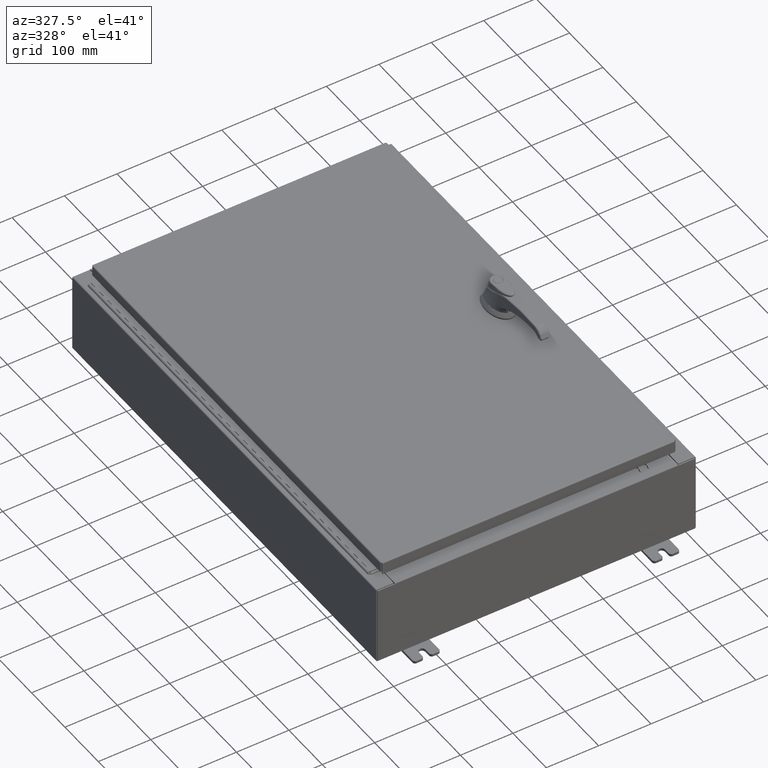
[diagram: clean part render]
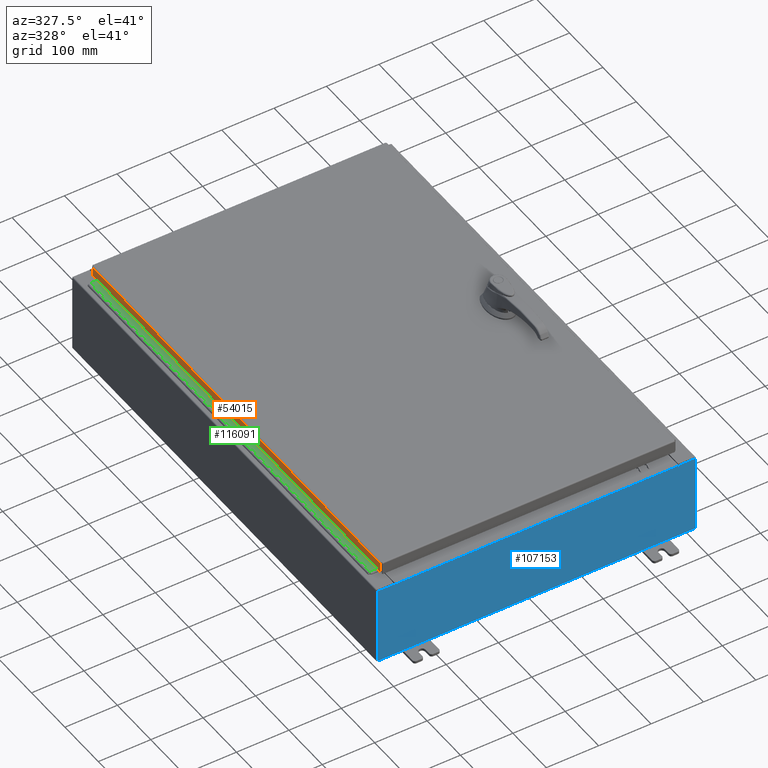
[diagram: same view with three faces highlighted in distinct colors, each labeled with its STEP entity id]
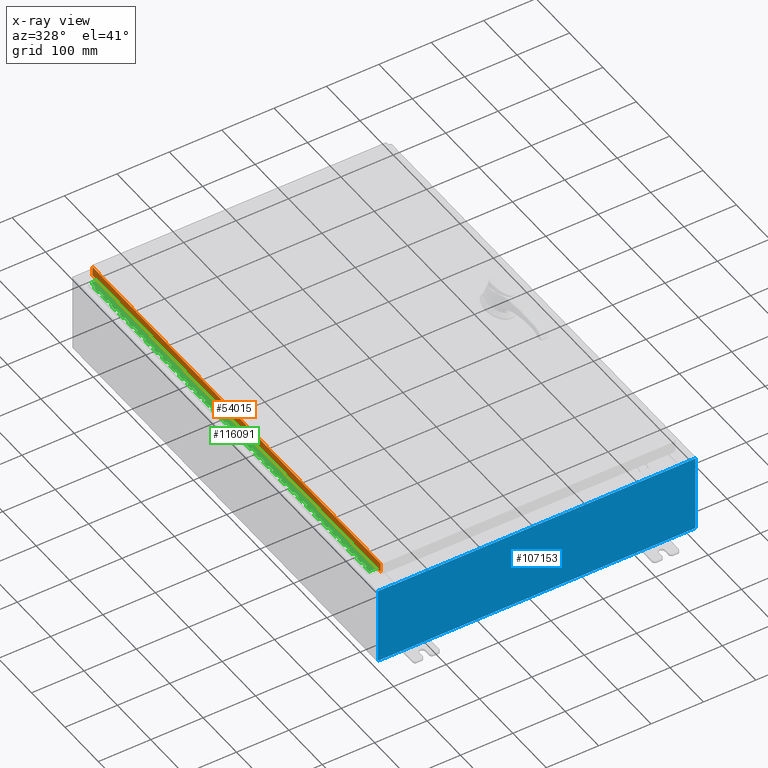
[diagram: x-ray of the same camera — body ghosted, the three highlighted faces saturated]
A machine part, auxiliary view with three faces highlighted in distinct colors.
The next image is the same camera in x-ray (body ghosted, the three faces saturated) — at least one of them is partly hidden behind the body in this view.
Their STEP definitions:

[orange] entity #54015 — the highlighted planar face has unit normal (1, 0, -0).
#1522 = AXIS2_PLACEMENT_3D ( 'NONE', #70135, #22797, #89260 ) ;
#7558 = ORIENTED_EDGE ( 'NONE', *, *, #53795, .F. ) ;
#7825 = VECTOR ( 'NONE', #106338, 39.37007874015748100 ) ;
#7866 = EDGE_CURVE ( 'NONE', #85087, #13263, #42961, .T. ) ;
#9534 = ORIENTED_EDGE ( 'NONE', *, *, #7866, .F. ) ;
#13263 = VERTEX_POINT ( 'NONE', #82723 ) ;
#14428 = DIRECTION ( 'NONE',  ( -6.392530697705073700E-017, 1.000000000000000000, 1.238552822680358100E-016 ) ) ;
#19304 = VECTOR ( 'NONE', #72188, 39.37007874015748100 ) ;
#22797 = DIRECTION ( 'NONE',  ( 1.000000000000000000, 6.392530697705110700E-017, -3.034122441942816500E-015 ) ) ;
#25128 = VERTEX_POINT ( 'NONE', #64169 ) ;
#38626 = LINE ( 'NONE', #119698, #19304 ) ;
#42484 = EDGE_CURVE ( 'NONE', #85087, #91286, #83731, .T. ) ;
#42961 = LINE ( 'NONE', #111134, #99617 ) ;
#43329 = EDGE_LOOP ( 'NONE', ( #9534, #112385, #64419, #7558 ) ) ;
#53795 = EDGE_CURVE ( 'NONE', #13263, #25128, #38626, .T. ) ;
#54015 = ADVANCED_FACE ( 'NONE', ( #54977 ), #60546, .F. ) ;
#54977 = FACE_OUTER_BOUND ( 'NONE', #43329, .T. ) ;
#60546 = PLANE ( 'NONE',  #1522 ) ;
#64169 = CARTESIAN_POINT ( 'NONE',  ( -11.07800000000000500, -17.00515786437626200, -0.7949999999999996000 ) ) ;
#64419 = ORIENTED_EDGE ( 'NONE', *, *, #69028, .F. ) ;
#64991 = LINE ( 'NONE', #80944, #87333 ) ;
#69028 = EDGE_CURVE ( 'NONE', #25128, #91286, #64991, .T. ) ;
#70135 = CARTESIAN_POINT ( 'NONE',  ( -11.07800000000000300, -7.081645506917722700E-016, 3.387282206785411200E-014 ) ) ;
#72188 = DIRECTION ( 'NONE',  ( -3.034122441942816500E-015, 6.982962677686265900E-015, -1.000000000000000000 ) ) ;
#80944 = CARTESIAN_POINT ( 'NONE',  ( -11.07800000000000500, -17.09399999999999800, -0.7949999999999997100 ) ) ;
#82723 = CARTESIAN_POINT ( 'NONE',  ( -11.07800000000000300, -17.00515786437626200, -0.08770000000000115200 ) ) ;
#83731 = LINE ( 'NONE', #105080, #7825 ) ;
#85087 = VERTEX_POINT ( 'NONE', #94003 ) ;
#87333 = VECTOR ( 'NONE', #14428, 39.37007874015748100 ) ;
#89260 = DIRECTION ( 'NONE',  ( -3.034122441942816500E-015, 0.0000000000000000000, -1.000000000000000000 ) ) ;
#91286 = VERTEX_POINT ( 'NONE', #122579 ) ;
#94003 = CARTESIAN_POINT ( 'NONE',  ( -11.07800000000000500, 17.00515786437627600, -0.08770000000000223500 ) ) ;
#99617 = VECTOR ( 'NONE', #114638, 39.37007874015748100 ) ;
#105080 = CARTESIAN_POINT ( 'NONE',  ( -11.07800000000000300, 17.00515786437627600, 1.526192047629567600E-013 ) ) ;
#106338 = DIRECTION ( 'NONE',  ( -3.034122441942816500E-015, 6.982962677686265900E-015, -1.000000000000000000 ) ) ;
#111134 = CARTESIAN_POINT ( 'NONE',  ( -11.07800000000000300, -17.09399999999999800, -0.08770000000000004200 ) ) ;
#112385 = ORIENTED_EDGE ( 'NONE', *, *, #42484, .T. ) ;
#114638 = DIRECTION ( 'NONE',  ( 6.392530697705130400E-017, -1.000000000000000000, 6.392530697705074900E-017 ) ) ;
#119698 = CARTESIAN_POINT ( 'NONE',  ( -11.07800000000000300, -17.00515786437626500, -0.07469999999999976700 ) ) ;
#122579 = CARTESIAN_POINT ( 'NONE',  ( -11.07800000000000500, 17.00515786437628000, -0.7949999999999954900 ) ) ;

[blue] entity #107153 — the highlighted planar face has unit normal (-0, 1, -0).
#130 = CARTESIAN_POINT ( 'NONE',  ( 10.63720000000000400, 0.0000000000000000000, 2.874950000000000600 ) ) ;
#2183 = VERTEX_POINT ( 'NONE', #67299 ) ;
#4086 = LINE ( 'NONE', #86763, #102284 ) ;
#6334 = CARTESIAN_POINT ( 'NONE',  ( -11.92530000000000000, 0.0000000000000000000, -2.925299999999999600 ) ) ;
#7234 = CARTESIAN_POINT ( 'NONE',  ( 11.92530000000000000, 0.0000000000000000000, 2.925300000000000500 ) ) ;
#7692 = ORIENTED_EDGE ( 'NONE', *, *, #29535, .F. ) ;
#8816 = CARTESIAN_POINT ( 'NONE',  ( -11.92530000000000000, 0.0000000000000000000, 2.925300000000000500 ) ) ;
#9200 = VECTOR ( 'NONE', #121418, 39.37007874015748100 ) ;
#16047 = VERTEX_POINT ( 'NONE', #22840 ) ;
#16695 = DIRECTION ( 'NONE',  ( -0.0000000000000000000, -0.0000000000000000000, 1.000000000000000000 ) ) ;
#20267 = EDGE_CURVE ( 'NONE', #2183, #101947, #44487, .T. ) ;
#20445 = CARTESIAN_POINT ( 'NONE',  ( -10.65587500000000200, 0.0000000000000000000, 2.874950000000000600 ) ) ;
#21342 = ORIENTED_EDGE ( 'NONE', *, *, #41756, .T. ) ;
#22714 = CARTESIAN_POINT ( 'NONE',  ( 11.92530000000000000, 0.0000000000000000000, 2.925300000000000500 ) ) ;
#22840 = CARTESIAN_POINT ( 'NONE',  ( -11.92530000000000000, 0.0000000000000000000, -2.925299999999999600 ) ) ;
#24779 = VECTOR ( 'NONE', #123184, 39.37007874015748100 ) ;
#25456 = CARTESIAN_POINT ( 'NONE',  ( -11.92530000000000000, 0.0000000000000000000, 2.925300000000000500 ) ) ;
#28469 = ORIENTED_EDGE ( 'NONE', *, *, #82132, .F. ) ;
#29242 = VERTEX_POINT ( 'NONE', #111970 ) ;
#29535 = EDGE_CURVE ( 'NONE', #2183, #83708, #34538, .T. ) ;
#30013 = DIRECTION ( 'NONE',  ( 0.0000000000000000000, 0.0000000000000000000, -1.000000000000000000 ) ) ;
#34150 = CARTESIAN_POINT ( 'NONE',  ( 0.0000000000000000000, 0.0000000000000000000, 0.0000000000000000000 ) ) ;
#34538 = LINE ( 'NONE', #111865, #9200 ) ;
#34569 = DIRECTION ( 'NONE',  ( 0.0000000000000000000, -1.000000000000000000, 0.0000000000000000000 ) ) ;
#35156 = EDGE_CURVE ( 'NONE', #44043, #47045, #90471, .T. ) ;
#35371 = VECTOR ( 'NONE', #82413, 39.37007874015748100 ) ;
#35555 = EDGE_CURVE ( 'NONE', #52390, #16047, #60609, .T. ) ;
#37864 = CIRCLE ( 'NONE', #82545, 0.01867499999999949400 ) ;
#39091 = ORIENTED_EDGE ( 'NONE', *, *, #76445, .F. ) ;
#41437 = DIRECTION ( 'NONE',  ( -0.0000000000000000000, 1.000000000000000000, -0.0000000000000000000 ) ) ;
#41756 = EDGE_CURVE ( 'NONE', #16047, #29242, #58533, .T. ) ;
#44043 = VERTEX_POINT ( 'NONE', #45211 ) ;
#44487 = LINE ( 'NONE', #58692, #69778 ) ;
#45171 = AXIS2_PLACEMENT_3D ( 'NONE', #34150, #34569, #101136 ) ;
#45211 = CARTESIAN_POINT ( 'NONE',  ( 10.67455000000000200, 0.0000000000000000000, 2.925300000000000500 ) ) ;
#45644 = EDGE_CURVE ( 'NONE', #44043, #66494, #69353, .T. ) ;
#47045 = VERTEX_POINT ( 'NONE', #82676 ) ;
#52390 = VERTEX_POINT ( 'NONE', #55273 ) ;
#54634 = VERTEX_POINT ( 'NONE', #112422 ) ;
#55273 = CARTESIAN_POINT ( 'NONE',  ( 11.92530000000000000, 0.0000000000000000000, -2.925299999999999600 ) ) ;
#55400 = CIRCLE ( 'NONE', #77035, 0.01867499999999949400 ) ;
#55542 = VECTOR ( 'NONE', #16695, 39.37007874015748100 ) ;
#58339 = CARTESIAN_POINT ( 'NONE',  ( 10.67454999999987700, -0.0000000000000000000, -4.633366117301834200E-013 ) ) ;
#58533 = LINE ( 'NONE', #111551, #55542 ) ;
#58692 = CARTESIAN_POINT ( 'NONE',  ( -10.63720000000000400, 1.024442997624098700E-016, 2.912300000000000600 ) ) ;
#60609 = LINE ( 'NONE', #6334, #35371 ) ;
#60978 = VECTOR ( 'NONE', #116329, 39.37007874015748100 ) ;
#65863 = ORIENTED_EDGE ( 'NONE', *, *, #88808, .T. ) ;
#66494 = VERTEX_POINT ( 'NONE', #7234 ) ;
#67299 = CARTESIAN_POINT ( 'NONE',  ( -10.63720000000000400, 1.024442997624098700E-016, 2.912300000000000600 ) ) ;
#68865 = ORIENTED_EDGE ( 'NONE', *, *, #35555, .T. ) ;
#69353 = LINE ( 'NONE', #8816, #24779 ) ;
#69668 = LINE ( 'NONE', #22714, #98055 ) ;
#69778 = VECTOR ( 'NONE', #106127, 39.37007874015748100 ) ;
#72169 = CARTESIAN_POINT ( 'NONE',  ( 10.63720000000000400, 0.0000000000000000000, 2.912300000000000600 ) ) ;
#74574 = ORIENTED_EDGE ( 'NONE', *, *, #122664, .F. ) ;
#76445 = EDGE_CURVE ( 'NONE', #89127, #101947, #4086, .T. ) ;
#77035 = AXIS2_PLACEMENT_3D ( 'NONE', #20445, #86959, #30013 ) ;
#77981 = CARTESIAN_POINT ( 'NONE',  ( -10.67455000000000200, -0.0000000000000000000, 0.0000000000000000000 ) ) ;
#81534 = VERTEX_POINT ( 'NONE', #105494 ) ;
#82132 = EDGE_CURVE ( 'NONE', #81534, #54634, #111694, .T. ) ;
#82290 = ORIENTED_EDGE ( 'NONE', *, *, #45644, .T. ) ;
#82413 = DIRECTION ( 'NONE',  ( -1.000000000000000000, -0.0000000000000000000, -0.0000000000000000000 ) ) ;
#82545 = AXIS2_PLACEMENT_3D ( 'NONE', #98489, #41437, #108006 ) ;
#82676 = CARTESIAN_POINT ( 'NONE',  ( 10.67455000000000200, 0.0000000000000000000, 2.874950000000000600 ) ) ;
#83708 = VERTEX_POINT ( 'NONE', #114355 ) ;
#84480 = VECTOR ( 'NONE', #87033, 39.37007874015748100 ) ;
#86763 = CARTESIAN_POINT ( 'NONE',  ( 10.63720000000000400, 0.0000000000000000000, 0.0000000000000000000 ) ) ;
#86959 = DIRECTION ( 'NONE',  ( -0.0000000000000000000, 1.000000000000000000, -0.0000000000000000000 ) ) ;
#87033 = DIRECTION ( 'NONE',  ( -4.340572780400004900E-014, 0.0000000000000000000, -1.000000000000000000 ) ) ;
#88808 = EDGE_CURVE ( 'NONE', #66494, #52390, #69668, .T. ) ;
#89127 = VERTEX_POINT ( 'NONE', #130 ) ;
#89183 = DIRECTION ( 'NONE',  ( 0.0000000000000000000, 0.0000000000000000000, -1.000000000000000000 ) ) ;
#90471 = LINE ( 'NONE', #58339, #84480 ) ;
#91514 = PLANE ( 'NONE',  #45171 ) ;
#91567 = DIRECTION ( 'NONE',  ( 1.000000000000000000, 0.0000000000000000000, 0.0000000000000000000 ) ) ;
#95570 = ORIENTED_EDGE ( 'NONE', *, *, #20267, .T. ) ;
#98055 = VECTOR ( 'NONE', #89183, 39.37007874015748100 ) ;
#98489 = CARTESIAN_POINT ( 'NONE',  ( 10.65587500000000200, 0.0000000000000000000, 2.874950000000000600 ) ) ;
#101136 = DIRECTION ( 'NONE',  ( 0.0000000000000000000, -0.0000000000000000000, -1.000000000000000000 ) ) ;
#101433 = LINE ( 'NONE', #25456, #104351 ) ;
#101947 = VERTEX_POINT ( 'NONE', #72169 ) ;
#102284 = VECTOR ( 'NONE', #115515, 39.37007874015748100 ) ;
#104351 = VECTOR ( 'NONE', #91567, 39.37007874015748100 ) ;
#104592 = ORIENTED_EDGE ( 'NONE', *, *, #35156, .F. ) ;
#105130 = EDGE_CURVE ( 'NONE', #47045, #89127, #37864, .T. ) ;
#105494 = CARTESIAN_POINT ( 'NONE',  ( -10.67455000000000200, 0.0000000000000000000, 2.874950000000000600 ) ) ;
#106127 = DIRECTION ( 'NONE',  ( 1.000000000000000000, 0.0000000000000000000, 0.0000000000000000000 ) ) ;
#106161 = ORIENTED_EDGE ( 'NONE', *, *, #113252, .T. ) ;
#107153 = ADVANCED_FACE ( 'NONE', ( #119514 ), #91514, .F. ) ;
#108006 = DIRECTION ( 'NONE',  ( 0.0000000000000000000, 0.0000000000000000000, -1.000000000000000000 ) ) ;
#109653 = EDGE_LOOP ( 'NONE', ( #28469, #74574, #7692, #95570, #39091, #118002, #104592, #82290, #65863, #68865, #21342, #106161 ) ) ;
#111551 = CARTESIAN_POINT ( 'NONE',  ( -11.92530000000000000, 0.0000000000000000000, 2.925300000000000500 ) ) ;
#111694 = LINE ( 'NONE', #77981, #60978 ) ;
#111865 = CARTESIAN_POINT ( 'NONE',  ( -10.63720000000000400, -0.0000000000000000000, 0.0000000000000000000 ) ) ;
#111970 = CARTESIAN_POINT ( 'NONE',  ( -11.92530000000000000, 0.0000000000000000000, 2.925300000000000500 ) ) ;
#112422 = CARTESIAN_POINT ( 'NONE',  ( -10.67455000000000200, 0.0000000000000000000, 2.925300000000000500 ) ) ;
#113252 = EDGE_CURVE ( 'NONE', #29242, #54634, #101433, .T. ) ;
#114355 = CARTESIAN_POINT ( 'NONE',  ( -10.63720000000000400, -0.0000000000000000000, 2.874950000000000600 ) ) ;
#115515 = DIRECTION ( 'NONE',  ( 0.0000000000000000000, 0.0000000000000000000, 1.000000000000000000 ) ) ;
#116329 = DIRECTION ( 'NONE',  ( 0.0000000000000000000, 0.0000000000000000000, 1.000000000000000000 ) ) ;
#118002 = ORIENTED_EDGE ( 'NONE', *, *, #105130, .F. ) ;
#119514 = FACE_OUTER_BOUND ( 'NONE', #109653, .T. ) ;
#121418 = DIRECTION ( 'NONE',  ( 0.0000000000000000000, 0.0000000000000000000, -1.000000000000000000 ) ) ;
#122664 = EDGE_CURVE ( 'NONE', #83708, #81534, #55400, .T. ) ;
#123184 = DIRECTION ( 'NONE',  ( 1.000000000000000000, 0.0000000000000000000, 0.0000000000000000000 ) ) ;

[green] entity #116091 — the highlighted planar face has unit normal (-0, -0, 1).
#19 = LINE ( 'NONE', #61163, #78850 ) ;
#34 = ORIENTED_EDGE ( 'NONE', *, *, #1678, .T. ) ;
#185 = CARTESIAN_POINT ( 'NONE',  ( -0.6870000000000022800, -0.6245000000000003900, 0.0000000000000000000 ) ) ;
#393 = CARTESIAN_POINT ( 'NONE',  ( -0.6869999999999973900, 0.8004999999999995500, -10.50000000000000000 ) ) ;
#509 = CARTESIAN_POINT ( 'NONE',  ( -0.6869999999999978300, 0.6754999999999996600, -6.499999999999999100 ) ) ;
#536 = VERTEX_POINT ( 'NONE', #35454 ) ;
#550 = LINE ( 'NONE', #45822, #73397 ) ;
#735 = VECTOR ( 'NONE', #49258, 39.37007874015748100 ) ;
#743 = LINE ( 'NONE', #59922, #73610 ) ;
#777 = CARTESIAN_POINT ( 'NONE',  ( -0.6869999999999982800, 0.5504999999999997700, -17.99999999999999600 ) ) ;
#794 = CARTESIAN_POINT ( 'NONE',  ( -0.6869999999999982800, 0.5504999999999997700, -25.50000000000000400 ) ) ;
#844 = DIRECTION ( 'NONE',  ( -3.389037039080723100E-015, -1.000000000000000000, 0.0000000000000000000 ) ) ;
#869 = ORIENTED_EDGE ( 'NONE', *, *, #3329, .F. ) ;
#1204 = CARTESIAN_POINT ( 'NONE',  ( -0.6869999999999978300, 0.6754999999999996600, -33.00000000000000000 ) ) ;
#1376 = LINE ( 'NONE', #99432, #102587 ) ;
#1497 = EDGE_CURVE ( 'NONE', #79137, #69791, #96548, .T. ) ;
#1645 = CARTESIAN_POINT ( 'NONE',  ( -0.6869999999999982800, 0.5504999999999997700, -11.50000000000000000 ) ) ;
#1678 = EDGE_CURVE ( 'NONE', #6503, #28293, #84539, .T. ) ;
#1752 = DIRECTION ( 'NONE',  ( 0.0000000000000000000, -0.0000000000000000000, -1.000000000000000000 ) ) ;
#1774 = EDGE_CURVE ( 'NONE', #107907, #91464, #31014, .T. ) ;
#1914 = EDGE_CURVE ( 'NONE', #74981, #121008, #69636, .T. ) ;
#1992 = CARTESIAN_POINT ( 'NONE',  ( -0.6869999999999982800, 0.5504999999999997700, -4.500000000000000000 ) ) ;
#2130 = VERTEX_POINT ( 'NONE', #14519 ) ;
#2164 = EDGE_CURVE ( 'NONE', #68118, #86620, #105331, .T. ) ;
#2361 = EDGE_CURVE ( 'NONE', #15819, #50790, #68046, .T. ) ;
#2471 = DIRECTION ( 'NONE',  ( 3.389037039080723100E-015, 1.000000000000000000, -0.0000000000000000000 ) ) ;
#2607 = ORIENTED_EDGE ( 'NONE', *, *, #81806, .F. ) ;
#2632 = CARTESIAN_POINT ( 'NONE',  ( -0.6869999999999973900, 0.8004999999999995500, -23.50000000000000000 ) ) ;
#2929 = ORIENTED_EDGE ( 'NONE', *, *, #15757, .T. ) ;
#2942 = CARTESIAN_POINT ( 'NONE',  ( -0.6869999999999982800, 0.5504999999999997700, -15.50000000000000000 ) ) ;
#3017 = DIRECTION ( 'NONE',  ( 0.0000000000000000000, 0.0000000000000000000, 1.000000000000000000 ) ) ;
#3087 = EDGE_CURVE ( 'NONE', #10476, #75795, #26364, .T. ) ;
#3138 = CARTESIAN_POINT ( 'NONE',  ( -0.6869999999999982800, 0.5504999999999997700, -4.500000000000000000 ) ) ;
#3143 = CARTESIAN_POINT ( 'NONE',  ( -0.6869999999999978300, 0.6754999999999996600, -4.000000000000000000 ) ) ;
#3274 = LINE ( 'NONE', #122962, #53836 ) ;
#3301 = EDGE_CURVE ( 'NONE', #78395, #92886, #11430, .T. ) ;
#3329 = EDGE_CURVE ( 'NONE', #113618, #41652, #8423, .T. ) ;
#3456 = CARTESIAN_POINT ( 'NONE',  ( -0.6869999999999978300, 0.6754999999999996600, -33.00000000000000000 ) ) ;
#3684 = DIRECTION ( 'NONE',  ( 3.389037039080723100E-015, 1.000000000000000000, -0.0000000000000000000 ) ) ;
#3777 = DIRECTION ( 'NONE',  ( -3.389037039080723100E-015, -1.000000000000000000, 0.0000000000000000000 ) ) ;
#3813 = VERTEX_POINT ( 'NONE', #89464 ) ;
#4034 = CARTESIAN_POINT ( 'NONE',  ( -0.6869999999999978300, 0.6754999999999996600, -3.500000000000000000 ) ) ;
#4068 = CARTESIAN_POINT ( 'NONE',  ( -0.6869999999999973900, 0.8004999999999995500, -16.50000000000000000 ) ) ;
#4104 = ORIENTED_EDGE ( 'NONE', *, *, #101323, .F. ) ;
#4249 = EDGE_CURVE ( 'NONE', #24722, #56234, #35326, .T. ) ;
#4268 = DIRECTION ( 'NONE',  ( 3.389037039080723100E-015, 1.000000000000000000, -0.0000000000000000000 ) ) ;
#4272 = LINE ( 'NONE', #49612, #26548 ) ;
#4291 = DIRECTION ( 'NONE',  ( -3.389037039080723100E-015, -1.000000000000000000, 0.0000000000000000000 ) ) ;
#4355 = DIRECTION ( 'NONE',  ( -3.389037039080723100E-015, -1.000000000000000000, 0.0000000000000000000 ) ) ;
#4531 = LINE ( 'NONE', #23425, #74357 ) ;
#4625 = CARTESIAN_POINT ( 'NONE',  ( -0.6869999999999978300, 0.6754999999999996600, -21.00000000000000000 ) ) ;
#4672 = LINE ( 'NONE', #45291, #102848 ) ;
#4709 = CARTESIAN_POINT ( 'NONE',  ( -0.6869999999999982800, 0.5504999999999997700, -21.00000000000000000 ) ) ;
#4819 = VERTEX_POINT ( 'NONE', #67350 ) ;
#5007 = VECTOR ( 'NONE', #39750, 39.37007874015748100 ) ;
#5012 = EDGE_CURVE ( 'NONE', #82581, #57525, #60451, .T. ) ;
#5048 = CARTESIAN_POINT ( 'NONE',  ( -0.6869999999999982800, 0.5504999999999997700, -8.500000000000000000 ) ) ;
#6051 = LINE ( 'NONE', #71318, #8979 ) ;
#6086 = CARTESIAN_POINT ( 'NONE',  ( -0.6869999999999978300, 0.6754999999999996600, -33.00000000000000000 ) ) ;
#6113 = CARTESIAN_POINT ( 'NONE',  ( -0.6869999999999978300, 0.6754999999999996600, -33.00000000000000000 ) ) ;
#6167 = VECTOR ( 'NONE', #48027, 39.37007874015748100 ) ;
#6177 = VECTOR ( 'NONE', #72384, 39.37007874015748100 ) ;
#6277 = CARTESIAN_POINT ( 'NONE',  ( -0.6869999999999982800, 0.5504999999999997700, -7.499999999999999100 ) ) ;
#6372 = CARTESIAN_POINT ( 'NONE',  ( -0.6869999999999982800, 0.5504999999999997700, -20.00000000000000000 ) ) ;
#6418 = VECTOR ( 'NONE', #86011, 39.37007874015748100 ) ;
#6427 = VERTEX_POINT ( 'NONE', #21963 ) ;
#6464 = CARTESIAN_POINT ( 'NONE',  ( -0.6869999999999978300, 0.6754999999999996600, -14.99999999999999800 ) ) ;
#6503 = VERTEX_POINT ( 'NONE', #509 ) ;
#6546 = LINE ( 'NONE', #3456, #121135 ) ;
#6609 = ORIENTED_EDGE ( 'NONE', *, *, #31506, .F. ) ;
#6618 = LINE ( 'NONE', #37249, #25955 ) ;
#6638 = VECTOR ( 'NONE', #39526, 39.37007874015748100 ) ;
#6652 = VECTOR ( 'NONE', #79243, 39.37007874015748100 ) ;
#6657 = DIRECTION ( 'NONE',  ( 3.369016658928398200E-015, 1.000000000000000000, 0.0000000000000000000 ) ) ;
#6683 = DIRECTION ( 'NONE',  ( 0.0000000000000000000, -0.0000000000000000000, -1.000000000000000000 ) ) ;
#6757 = VECTOR ( 'NONE', #101781, 39.37007874015748100 ) ;
#6916 = VERTEX_POINT ( 'NONE', #68492 ) ;
#7010 = ORIENTED_EDGE ( 'NONE', *, *, #24285, .T. ) ;
#7169 = DIRECTION ( 'NONE',  ( 3.389037039080723100E-015, 1.000000000000000000, -0.0000000000000000000 ) ) ;
#7258 = CARTESIAN_POINT ( 'NONE',  ( -0.6869999999999978300, 0.6754999999999996600, -30.50000000000000400 ) ) ;
#7292 = CARTESIAN_POINT ( 'NONE',  ( -0.6869999999999973900, 0.8004999999999995500, -8.000000000000000000 ) ) ;
#7304 = DIRECTION ( 'NONE',  ( 3.389037039080723100E-015, 1.000000000000000000, -0.0000000000000000000 ) ) ;
#7311 = EDGE_CURVE ( 'NONE', #48048, #43156, #72783, .T. ) ;
#7389 = VERTEX_POINT ( 'NONE', #45694 ) ;
#7580 = LINE ( 'NONE', #114809, #26934 ) ;
#7697 = EDGE_CURVE ( 'NONE', #96295, #37583, #80217, .T. ) ;
#7841 = VERTEX_POINT ( 'NONE', #90408 ) ;
#8125 = ORIENTED_EDGE ( 'NONE', *, *, #57704, .T. ) ;
#8298 = VERTEX_POINT ( 'NONE', #19328 ) ;
#8386 = VERTEX_POINT ( 'NONE', #41729 ) ;
#8423 = LINE ( 'NONE', #116122, #106683 ) ;
#8660 = VECTOR ( 'NONE', #21379, 39.37007874015748100 ) ;
#8721 = ORIENTED_EDGE ( 'NONE', *, *, #86125, .T. ) ;
#8837 = DIRECTION ( 'NONE',  ( 0.0000000000000000000, -0.0000000000000000000, -1.000000000000000000 ) ) ;
#8979 = VECTOR ( 'NONE', #14404, 39.37007874015748100 ) ;
#9130 = CARTESIAN_POINT ( 'NONE',  ( -0.6869999999999982800, 0.5504999999999997700, -14.00000000000000000 ) ) ;
#9234 = DIRECTION ( 'NONE',  ( 0.0000000000000000000, 0.0000000000000000000, 1.000000000000000000 ) ) ;
#9240 = CARTESIAN_POINT ( 'NONE',  ( -0.6869999999999978300, 0.6754999999999996600, -27.00000000000000000 ) ) ;
#9263 = VERTEX_POINT ( 'NONE', #47013 ) ;
#9519 = CARTESIAN_POINT ( 'NONE',  ( -0.6869999999999982800, 0.5504999999999997700, -10.50000000000000000 ) ) ;
#9568 = VECTOR ( 'NONE', #69827, 39.37007874015748100 ) ;
#9782 = DIRECTION ( 'NONE',  ( -3.389037039080723100E-015, -1.000000000000000000, 0.0000000000000000000 ) ) ;
#10097 = VECTOR ( 'NONE', #110169, 39.37007874015748100 ) ;
#10145 = ORIENTED_EDGE ( 'NONE', *, *, #3087, .T. ) ;
#10168 = EDGE_CURVE ( 'NONE', #115304, #104658, #27978, .T. ) ;
#10205 = LINE ( 'NONE', #2632, #83132 ) ;
#10279 = VECTOR ( 'NONE', #119461, 39.37007874015748100 ) ;
#10349 = EDGE_CURVE ( 'NONE', #112304, #30441, #120265, .T. ) ;
#10372 = EDGE_CURVE ( 'NONE', #74285, #118181, #91939, .T. ) ;
#10476 = VERTEX_POINT ( 'NONE', #65373 ) ;
#10537 = VERTEX_POINT ( 'NONE', #50915 ) ;
#10723 = DIRECTION ( 'NONE',  ( 0.0000000000000000000, 0.0000000000000000000, 1.000000000000000000 ) ) ;
#10733 = CARTESIAN_POINT ( 'NONE',  ( -0.6869999999999978300, 0.6754999999999996600, -10.50000000000000000 ) ) ;
#10878 = ORIENTED_EDGE ( 'NONE', *, *, #80887, .F. ) ;
#11140 = VERTEX_POINT ( 'NONE', #112329 ) ;
#11430 = LINE ( 'NONE', #101061, #112670 ) ;
#11732 = ORIENTED_EDGE ( 'NONE', *, *, #35722, .F. ) ;
#11749 = VECTOR ( 'NONE', #9782, 39.37007874015748100 ) ;
#11791 = VECTOR ( 'NONE', #106366, 39.37007874015748100 ) ;
#11918 = CARTESIAN_POINT ( 'NONE',  ( -0.6869999999999982800, 0.5504999999999997700, -12.99999999999999800 ) ) ;
#11957 = VERTEX_POINT ( 'NONE', #82768 ) ;
#12475 = VERTEX_POINT ( 'NONE', #5048 ) ;
#12489 = CARTESIAN_POINT ( 'NONE',  ( -0.6869999999999973900, 0.8004999999999995500, -11.99999999999999800 ) ) ;
#12546 = EDGE_CURVE ( 'NONE', #47507, #48207, #14284, .T. ) ;
#12550 = DIRECTION ( 'NONE',  ( 3.389037039080723100E-015, 1.000000000000000000, -0.0000000000000000000 ) ) ;
#12738 = CARTESIAN_POINT ( 'NONE',  ( -0.6869999999999973900, 0.8004999999999995500, -8.500000000000000000 ) ) ;
#12865 = VECTOR ( 'NONE', #62747, 39.37007874015748100 ) ;
#13167 = ORIENTED_EDGE ( 'NONE', *, *, #81594, .F. ) ;
#13213 = EDGE_CURVE ( 'NONE', #120584, #50790, #102021, .T. ) ;
#13319 = CARTESIAN_POINT ( 'NONE',  ( -0.6869999999999973900, 0.8004999999999995500, -17.50000000000000000 ) ) ;
#13359 = VECTOR ( 'NONE', #83133, 39.37007874015748100 ) ;
#13586 = LINE ( 'NONE', #15841, #83510 ) ;
#13630 = VERTEX_POINT ( 'NONE', #67448 ) ;
#13899 = VERTEX_POINT ( 'NONE', #68971 ) ;
#14074 = CARTESIAN_POINT ( 'NONE',  ( -0.6869999999999973900, 0.8004999999999995500, -14.00000000000000000 ) ) ;
#14284 = LINE ( 'NONE', #27136, #115495 ) ;
#14404 = DIRECTION ( 'NONE',  ( 0.0000000000000000000, -0.0000000000000000000, -1.000000000000000000 ) ) ;
#14519 = CARTESIAN_POINT ( 'NONE',  ( -0.6869999999999978300, 0.6754999999999996600, -12.49999999999999800 ) ) ;
#14621 = VERTEX_POINT ( 'NONE', #6464 ) ;
#14648 = LINE ( 'NONE', #73527, #13359 ) ;
#14681 = VECTOR ( 'NONE', #102033, 39.37007874015748100 ) ;
#14762 = VERTEX_POINT ( 'NONE', #7258 ) ;
#14896 = CARTESIAN_POINT ( 'NONE',  ( -0.6869999999999978300, 0.6754999999999996600, -20.50000000000000400 ) ) ;
#15002 = CARTESIAN_POINT ( 'NONE',  ( -0.6869999999999982800, 0.5504999999999997700, -1.499999999999999800 ) ) ;
#15132 = EDGE_CURVE ( 'NONE', #6916, #121934, #6546, .T. ) ;
#15203 = CARTESIAN_POINT ( 'NONE',  ( -0.6869999999999973900, 0.8004999999999995500, -19.50000000000000000 ) ) ;
#15211 = VECTOR ( 'NONE', #57122, 39.37007874015748100 ) ;
#15603 = LINE ( 'NONE', #104346, #88447 ) ;
#15623 = DIRECTION ( 'NONE',  ( 0.0000000000000000000, -0.0000000000000000000, -1.000000000000000000 ) ) ;
#15643 = EDGE_CURVE ( 'NONE', #27012, #60614, #97281, .T. ) ;
#15757 = EDGE_CURVE ( 'NONE', #90007, #52801, #88235, .T. ) ;
#15819 = VERTEX_POINT ( 'NONE', #39478 ) ;
#15841 = CARTESIAN_POINT ( 'NONE',  ( -0.6869999999999982800, 0.5504999999999997700, -32.50000000000000000 ) ) ;
#15975 = CARTESIAN_POINT ( 'NONE',  ( -0.6869999999999982800, 0.5504999999999997700, -2.000000000000000000 ) ) ;
#16051 = EDGE_CURVE ( 'NONE', #17507, #121607, #42072, .T. ) ;
#16503 = VERTEX_POINT ( 'NONE', #45776 ) ;
#16583 = VERTEX_POINT ( 'NONE', #39946 ) ;
#16587 = CARTESIAN_POINT ( 'NONE',  ( -0.6869999999999982800, 0.5504999999999997700, -18.50000000000000000 ) ) ;
#16795 = CARTESIAN_POINT ( 'NONE',  ( -0.6869999999999978300, 0.6754999999999996600, -33.00000000000000000 ) ) ;
#16807 = VECTOR ( 'NONE', #15623, 39.37007874015748100 ) ;
#16962 = CARTESIAN_POINT ( 'NONE',  ( -0.6869999999999982800, 0.5504999999999997700, -2.999999999999999600 ) ) ;
#17019 = CARTESIAN_POINT ( 'NONE',  ( -0.6869999999999982800, 0.5504999999999997700, -27.00000000000000000 ) ) ;
#17485 = ORIENTED_EDGE ( 'NONE', *, *, #39683, .T. ) ;
#17502 = CARTESIAN_POINT ( 'NONE',  ( -0.6869999999999973900, 0.8004999999999995500, -17.00000000000000000 ) ) ;
#17507 = VERTEX_POINT ( 'NONE', #35557 ) ;
#17586 = CARTESIAN_POINT ( 'NONE',  ( -0.6869999999999978300, 0.6754999999999996600, -33.00000000000000000 ) ) ;
#17695 = ORIENTED_EDGE ( 'NONE', *, *, #2164, .T. ) ;
#17769 = VERTEX_POINT ( 'NONE', #44949 ) ;
#17795 = EDGE_CURVE ( 'NONE', #114404, #109508, #114778, .T. ) ;
#17805 = ORIENTED_EDGE ( 'NONE', *, *, #118829, .F. ) ;
#17825 = ORIENTED_EDGE ( 'NONE', *, *, #108383, .F. ) ;
#17861 = VERTEX_POINT ( 'NONE', #18333 ) ;
#17864 = CARTESIAN_POINT ( 'NONE',  ( -0.6869999999999982800, 0.5504999999999997700, -14.49999999999999800 ) ) ;
#17948 = ORIENTED_EDGE ( 'NONE', *, *, #35183, .F. ) ;
#18019 = DIRECTION ( 'NONE',  ( 3.389037039080723100E-015, 1.000000000000000000, -0.0000000000000000000 ) ) ;
#18086 = VECTOR ( 'NONE', #112347, 39.37007874015748100 ) ;
#18317 = LINE ( 'NONE', #50473, #91211 ) ;
#18333 = CARTESIAN_POINT ( 'NONE',  ( -0.6869999999999982800, 0.5504999999999997700, -0.5000000000000000000 ) ) ;
#18340 = ORIENTED_EDGE ( 'NONE', *, *, #44592, .F. ) ;
#18811 = LINE ( 'NONE', #118990, #120052 ) ;
#18940 = LINE ( 'NONE', #104450, #66482 ) ;
#19007 = ORIENTED_EDGE ( 'NONE', *, *, #76415, .T. ) ;
#19328 = CARTESIAN_POINT ( 'NONE',  ( -0.6869999999999978300, 0.6754999999999996600, -28.00000000000000000 ) ) ;
#19487 = ORIENTED_EDGE ( 'NONE', *, *, #107033, .F. ) ;
#19651 = CARTESIAN_POINT ( 'NONE',  ( -0.6869999999999978300, 0.6754999999999996600, -33.00000000000000000 ) ) ;
#19742 = ORIENTED_EDGE ( 'NONE', *, *, #104220, .T. ) ;
#19793 = CARTESIAN_POINT ( 'NONE',  ( -0.6869999999999978300, 0.6754999999999996600, -23.00000000000000000 ) ) ;
#20083 = ORIENTED_EDGE ( 'NONE', *, *, #57324, .F. ) ;
#20099 = DIRECTION ( 'NONE',  ( 0.0000000000000000000, 0.0000000000000000000, 1.000000000000000000 ) ) ;
#20438 = CARTESIAN_POINT ( 'NONE',  ( -0.6869999999999978300, 0.6754999999999996600, -33.00000000000000000 ) ) ;
#20717 = DIRECTION ( 'NONE',  ( 3.389037039080723100E-015, 1.000000000000000000, -0.0000000000000000000 ) ) ;
#21171 = CARTESIAN_POINT ( 'NONE',  ( -0.6869999999999982800, 0.5504999999999997700, -31.00000000000000000 ) ) ;
#21283 = ORIENTED_EDGE ( 'NONE', *, *, #58414, .F. ) ;
#21307 = ORIENTED_EDGE ( 'NONE', *, *, #92050, .F. ) ;
#21347 = VECTOR ( 'NONE', #74781, 39.37007874015748100 ) ;
#21379 = DIRECTION ( 'NONE',  ( 0.0000000000000000000, -0.0000000000000000000, -1.000000000000000000 ) ) ;
#21485 = VERTEX_POINT ( 'NONE', #31788 ) ;
#21680 = VECTOR ( 'NONE', #8837, 39.37007874015748100 ) ;
#21963 = CARTESIAN_POINT ( 'NONE',  ( -0.6869999999999982800, 0.5504999999999997700, -17.50000000000000000 ) ) ;
#22082 = ORIENTED_EDGE ( 'NONE', *, *, #99195, .F. ) ;
#22193 = CARTESIAN_POINT ( 'NONE',  ( -0.6869999999999978300, 0.6754999999999996600, -5.500000000000000000 ) ) ;
#22242 = EDGE_CURVE ( 'NONE', #71753, #24407, #93593, .T. ) ;
#22291 = VECTOR ( 'NONE', #63625, 39.37007874015748100 ) ;
#22773 = LINE ( 'NONE', #57965, #47997 ) ;
#22854 = CARTESIAN_POINT ( 'NONE',  ( -0.6869999999999982800, 0.5504999999999997700, -17.00000000000000000 ) ) ;
#22915 = CARTESIAN_POINT ( 'NONE',  ( -0.6869999999999982800, 0.5504999999999997700, -11.99999999999999800 ) ) ;
#23425 = CARTESIAN_POINT ( 'NONE',  ( -0.6869999999999982800, 0.5504999999999997700, -13.50000000000000000 ) ) ;
#23469 = VECTOR ( 'NONE', #93624, 39.37007874015748100 ) ;
#23514 = LINE ( 'NONE', #31512, #121705 ) ;
#23671 = LINE ( 'NONE', #96874, #45920 ) ;
#23680 = CARTESIAN_POINT ( 'NONE',  ( -0.6869999999999982800, 0.5504999999999997700, -21.50000000000000400 ) ) ;
#23694 = ORIENTED_EDGE ( 'NONE', *, *, #52415, .T. ) ;
#23710 = DIRECTION ( 'NONE',  ( 0.0000000000000000000, 0.0000000000000000000, 1.000000000000000000 ) ) ;
#23817 = VECTOR ( 'NONE', #118716, 39.37007874015748100 ) ;
#23877 = VECTOR ( 'NONE', #18019, 39.37007874015748100 ) ;
#24217 = VECTOR ( 'NONE', #41022, 39.37007874015748100 ) ;
#24264 = DIRECTION ( 'NONE',  ( 0.0000000000000000000, 0.0000000000000000000, 1.000000000000000000 ) ) ;
#24285 = EDGE_CURVE ( 'NONE', #78395, #90926, #30825, .T. ) ;
#24407 = VERTEX_POINT ( 'NONE', #68281 ) ;
#24409 = LINE ( 'NONE', #95675, #71940 ) ;
#24541 = CARTESIAN_POINT ( 'NONE',  ( -0.6869999999999982800, 0.5504999999999997700, -10.00000000000000000 ) ) ;
#24683 = CARTESIAN_POINT ( 'NONE',  ( -0.6869999999999982800, 0.5504999999999997700, -5.500000000000000000 ) ) ;
#24722 = VERTEX_POINT ( 'NONE', #25877 ) ;
#24888 = VECTOR ( 'NONE', #99317, 39.37007874015748100 ) ;
#25042 = EDGE_CURVE ( 'NONE', #14762, #16503, #84232, .T. ) ;
#25077 = DIRECTION ( 'NONE',  ( 0.0000000000000000000, -0.0000000000000000000, -1.000000000000000000 ) ) ;
#25105 = ORIENTED_EDGE ( 'NONE', *, *, #46356, .F. ) ;
#25356 = VERTEX_POINT ( 'NONE', #9240 ) ;
#25374 = VECTOR ( 'NONE', #90454, 39.37007874015748100 ) ;
#25540 = VERTEX_POINT ( 'NONE', #17864 ) ;
#25678 = EDGE_CURVE ( 'NONE', #16583, #85564, #96117, .T. ) ;
#25749 = CARTESIAN_POINT ( 'NONE',  ( -0.6869999999999978300, 0.6754999999999996600, -20.00000000000000000 ) ) ;
#25776 = CARTESIAN_POINT ( 'NONE',  ( -0.6869999999999978300, 0.6754999999999996600, -33.00000000000000000 ) ) ;
#25877 = CARTESIAN_POINT ( 'NONE',  ( -0.6869999999999982800, 0.5504999999999997700, -3.500000000000000000 ) ) ;
#25927 = CARTESIAN_POINT ( 'NONE',  ( -0.6869999999999973900, 0.8004999999999995500, -12.99999999999999800 ) ) ;
#25955 = VECTOR ( 'NONE', #46785, 39.37007874015748100 ) ;
#26167 = ORIENTED_EDGE ( 'NONE', *, *, #7311, .F. ) ;
#26364 = LINE ( 'NONE', #6113, #99318 ) ;
#26423 = LINE ( 'NONE', #68489, #99380 ) ;
#26443 = CARTESIAN_POINT ( 'NONE',  ( -0.6869999999999973900, 0.8004999999999995500, -24.99999999999999600 ) ) ;
#26451 = EDGE_CURVE ( 'NONE', #91487, #25356, #743, .T. ) ;
#26452 = DIRECTION ( 'NONE',  ( 0.0000000000000000000, -0.0000000000000000000, -1.000000000000000000 ) ) ;
#26453 = CARTESIAN_POINT ( 'NONE',  ( -0.6869999999999978300, 0.6754999999999996600, -8.500000000000000000 ) ) ;
#26542 = ORIENTED_EDGE ( 'NONE', *, *, #46627, .F. ) ;
#26548 = VECTOR ( 'NONE', #59152, 39.37007874015748100 ) ;
#26679 = DIRECTION ( 'NONE',  ( 0.0000000000000000000, -0.0000000000000000000, -1.000000000000000000 ) ) ;
#26737 = EDGE_CURVE ( 'NONE', #118181, #96295, #87001, .T. ) ;
#26746 = CARTESIAN_POINT ( 'NONE',  ( -0.6869999999999978300, 0.6754999999999996600, -33.00000000000000000 ) ) ;
#26934 = VECTOR ( 'NONE', #844, 39.37007874015748100 ) ;
#26952 = VERTEX_POINT ( 'NONE', #66598 ) ;
#27012 = VERTEX_POINT ( 'NONE', #95838 ) ;
#27136 = CARTESIAN_POINT ( 'NONE',  ( -0.6869999999999973900, 0.8004999999999995500, -11.50000000000000000 ) ) ;
#27157 = DIRECTION ( 'NONE',  ( -3.389037039080723100E-015, -1.000000000000000000, 0.0000000000000000000 ) ) ;
#27237 = VERTEX_POINT ( 'NONE', #52461 ) ;
#27675 = EDGE_CURVE ( 'NONE', #32820, #80559, #24409, .T. ) ;
#27717 = CARTESIAN_POINT ( 'NONE',  ( -0.6869999999999982800, 0.5504999999999997700, -25.50000000000000400 ) ) ;
#27839 = EDGE_CURVE ( 'NONE', #102213, #40074, #94348, .T. ) ;
#27927 = CARTESIAN_POINT ( 'NONE',  ( -0.6869999999999982800, 0.5504999999999997700, -21.50000000000000400 ) ) ;
#27978 = LINE ( 'NONE', #42927, #100944 ) ;
#27980 = DIRECTION ( 'NONE',  ( 3.389037039080723100E-015, 1.000000000000000000, -0.0000000000000000000 ) ) ;
#28237 = CARTESIAN_POINT ( 'NONE',  ( -0.6869999999999982800, 0.5504999999999997700, -16.50000000000000000 ) ) ;
#28293 = VERTEX_POINT ( 'NONE', #44702 ) ;
#28393 = CARTESIAN_POINT ( 'NONE',  ( -0.6869999999999973900, 0.8004999999999995500, -19.00000000000000000 ) ) ;
#29043 = LINE ( 'NONE', #99415, #54332 ) ;
#29230 = VECTOR ( 'NONE', #60973, 39.37007874015748100 ) ;
#29238 = VECTOR ( 'NONE', #106032, 39.37007874015748100 ) ;
#29292 = VERTEX_POINT ( 'NONE', #74410 ) ;
#29341 = VECTOR ( 'NONE', #42145, 39.37007874015748100 ) ;
#30273 = LINE ( 'NONE', #95526, #5007 ) ;
#30441 = VERTEX_POINT ( 'NONE', #30930 ) ;
#30638 = DIRECTION ( 'NONE',  ( 3.389037039080723100E-015, 1.000000000000000000, -0.0000000000000000000 ) ) ;
#30661 = ORIENTED_EDGE ( 'NONE', *, *, #10372, .F. ) ;
#30825 = LINE ( 'NONE', #57507, #106725 ) ;
#30930 = CARTESIAN_POINT ( 'NONE',  ( -0.6869999999999982800, 0.5504999999999997700, -24.99999999999999600 ) ) ;
#31014 = LINE ( 'NONE', #23680, #8660 ) ;
#31241 = LINE ( 'NONE', #794, #104144 ) ;
#31466 = CARTESIAN_POINT ( 'NONE',  ( -0.6869999999999978300, 0.6754999999999996600, -33.00000000000000000 ) ) ;
#31506 = EDGE_CURVE ( 'NONE', #60614, #121934, #96987, .T. ) ;
#31512 = CARTESIAN_POINT ( 'NONE',  ( -0.6869999999999973900, 0.8004999999999995500, -23.00000000000000000 ) ) ;
#31524 = DIRECTION ( 'NONE',  ( 0.0000000000000000000, -0.0000000000000000000, -1.000000000000000000 ) ) ;
#31566 = DIRECTION ( 'NONE',  ( 3.389037039080723100E-015, 1.000000000000000000, -0.0000000000000000000 ) ) ;
#31694 = LINE ( 'NONE', #38648, #6418 ) ;
#31698 = EDGE_CURVE ( 'NONE', #103711, #48436, #122224, .T. ) ;
#31788 = CARTESIAN_POINT ( 'NONE',  ( -0.6869999999999982800, 0.5504999999999997700, -22.50000000000000000 ) ) ;
#31935 = EDGE_CURVE ( 'NONE', #17769, #14621, #41794, .T. ) ;
#32059 = EDGE_CURVE ( 'NONE', #121362, #45789, #61081, .T. ) ;
#32110 = DIRECTION ( 'NONE',  ( 0.0000000000000000000, 0.0000000000000000000, 1.000000000000000000 ) ) ;
#32385 = ORIENTED_EDGE ( 'NONE', *, *, #95187, .F. ) ;
#32401 = CARTESIAN_POINT ( 'NONE',  ( -0.6869999999999982800, 0.5504999999999997700, -9.000000000000000000 ) ) ;
#32486 = LINE ( 'NONE', #89536, #57750 ) ;
#32749 = CARTESIAN_POINT ( 'NONE',  ( -0.6869999999999982800, 0.5504999999999997700, -31.50000000000000400 ) ) ;
#32820 = VERTEX_POINT ( 'NONE', #101128 ) ;
#33058 = CARTESIAN_POINT ( 'NONE',  ( -0.6869999999999982800, 0.5504999999999997700, -24.50000000000000000 ) ) ;
#33149 = DIRECTION ( 'NONE',  ( -3.389037039080723100E-015, -1.000000000000000000, 0.0000000000000000000 ) ) ;
#33460 = VERTEX_POINT ( 'NONE', #56350 ) ;
#33839 = CARTESIAN_POINT ( 'NONE',  ( -0.6869999999999982800, 0.5504999999999997700, -3.500000000000000000 ) ) ;
#33934 = LINE ( 'NONE', #97088, #106855 ) ;
#33991 = VECTOR ( 'NONE', #65821, 39.37007874015748100 ) ;
#34121 = DIRECTION ( 'NONE',  ( 0.0000000000000000000, -0.0000000000000000000, -1.000000000000000000 ) ) ;
#34310 = ORIENTED_EDGE ( 'NONE', *, *, #37656, .F. ) ;
#34406 = VERTEX_POINT ( 'NONE', #48907 ) ;
#34539 = DIRECTION ( 'NONE',  ( 0.0000000000000000000, -0.0000000000000000000, -1.000000000000000000 ) ) ;
#34853 = CARTESIAN_POINT ( 'NONE',  ( -0.6869999999999982800, 0.5504999999999997700, -23.99999999999999600 ) ) ;
#34909 = LINE ( 'NONE', #12489, #9568 ) ;
#34918 = LINE ( 'NONE', #13319, #82525 ) ;
#34929 = PLANE ( 'NONE',  #41752 ) ;
#34947 = ORIENTED_EDGE ( 'NONE', *, *, #52288, .F. ) ;
#35183 = EDGE_CURVE ( 'NONE', #121008, #112940, #33934, .T. ) ;
#35326 = LINE ( 'NONE', #33839, #29341 ) ;
#35384 = VERTEX_POINT ( 'NONE', #4709 ) ;
#35428 = CARTESIAN_POINT ( 'NONE',  ( -0.6869999999999982800, 0.5504999999999997700, -23.50000000000000000 ) ) ;
#35454 = CARTESIAN_POINT ( 'NONE',  ( -0.6869999999999982800, 0.5504999999999997700, -7.499999999999999100 ) ) ;
#35557 = CARTESIAN_POINT ( 'NONE',  ( -0.6869999999999982800, 0.5504999999999997700, -12.49999999999999800 ) ) ;
#35722 = EDGE_CURVE ( 'NONE', #85564, #38211, #48696, .T. ) ;
#35845 = VECTOR ( 'NONE', #67965, 39.37007874015748100 ) ;
#35955 = LINE ( 'NONE', #17586, #105872 ) ;
#35957 = ORIENTED_EDGE ( 'NONE', *, *, #96891, .F. ) ;
#36087 = VECTOR ( 'NONE', #6683, 39.37007874015748100 ) ;
#36389 = CARTESIAN_POINT ( 'NONE',  ( -0.6869999999999978300, 0.6754999999999996600, -23.99999999999999600 ) ) ;
#36646 = CARTESIAN_POINT ( 'NONE',  ( -0.6869999999999982800, 0.5504999999999997700, -9.500000000000000000 ) ) ;
#36674 = CARTESIAN_POINT ( 'NONE',  ( -0.6869999999999978300, 0.6754999999999996600, -19.00000000000000000 ) ) ;
#37030 = LINE ( 'NONE', #57216, #11749 ) ;
#37097 = CARTESIAN_POINT ( 'NONE',  ( -0.6869999999999978300, 0.6754999999999996600, -7.000000000000000000 ) ) ;
#37245 = ORIENTED_EDGE ( 'NONE', *, *, #38786, .F. ) ;
#37249 = CARTESIAN_POINT ( 'NONE',  ( -0.6869999999999973900, 0.8004999999999995500, -6.000000000000000900 ) ) ;
#37411 = LINE ( 'NONE', #24683, #110358 ) ;
#37583 = VERTEX_POINT ( 'NONE', #86673 ) ;
#37644 = VECTOR ( 'NONE', #119626, 39.37007874015748100 ) ;
#37656 = EDGE_CURVE ( 'NONE', #13630, #65146, #112510, .T. ) ;
#37658 = VECTOR ( 'NONE', #115211, 39.37007874015748100 ) ;
#37796 = CARTESIAN_POINT ( 'NONE',  ( -0.6869999999999982800, 0.5504999999999997700, -6.000000000000000900 ) ) ;
#37877 = VECTOR ( 'NONE', #47763, 39.37007874015748100 ) ;
#38211 = VERTEX_POINT ( 'NONE', #119383 ) ;
#38258 = EDGE_CURVE ( 'NONE', #26952, #40074, #64702, .T. ) ;
#38327 = VERTEX_POINT ( 'NONE', #54838 ) ;
#38390 = CARTESIAN_POINT ( 'NONE',  ( -0.6869999999999978300, 0.6754999999999996600, -32.00000000000000000 ) ) ;
#38489 = CARTESIAN_POINT ( 'NONE',  ( -0.6869999999999978300, 0.6754999999999996600, -33.00000000000000000 ) ) ;
#38648 = CARTESIAN_POINT ( 'NONE',  ( -0.6869999999999973900, 0.8004999999999995500, -7.499999999999999100 ) ) ;
#38736 = VERTEX_POINT ( 'NONE', #15975 ) ;
#38786 = EDGE_CURVE ( 'NONE', #120584, #115304, #15603, .T. ) ;
#38821 = EDGE_CURVE ( 'NONE', #3813, #80902, #63148, .T. ) ;
#39299 = VERTEX_POINT ( 'NONE', #109711 ) ;
#39478 = CARTESIAN_POINT ( 'NONE',  ( -0.6869999999999982800, 0.5504999999999997700, -26.00000000000000000 ) ) ;
#39526 = DIRECTION ( 'NONE',  ( 0.0000000000000000000, -0.0000000000000000000, -1.000000000000000000 ) ) ;
#39683 = EDGE_CURVE ( 'NONE', #121720, #77290, #119670, .T. ) ;
#39721 = CARTESIAN_POINT ( 'NONE',  ( -0.6869999999999978300, 0.6754999999999996600, -5.000000000000000000 ) ) ;
#39750 = DIRECTION ( 'NONE',  ( 3.389037039080723100E-015, 1.000000000000000000, -0.0000000000000000000 ) ) ;
#39829 = CARTESIAN_POINT ( 'NONE',  ( -0.6869999999999978300, 0.6754999999999996600, -18.50000000000000000 ) ) ;
#39946 = CARTESIAN_POINT ( 'NONE',  ( -0.6869999999999982800, 0.5504999999999997700, -16.50000000000000000 ) ) ;
#39967 = EDGE_CURVE ( 'NONE', #113618, #27237, #76365, .T. ) ;
#39979 = LINE ( 'NONE', #25927, #14681 ) ;
#40035 = EDGE_CURVE ( 'NONE', #44772, #69791, #550, .T. ) ;
#40074 = VERTEX_POINT ( 'NONE', #37097 ) ;
#40614 = ORIENTED_EDGE ( 'NONE', *, *, #104593, .F. ) ;
#40658 = ORIENTED_EDGE ( 'NONE', *, *, #25678, .F. ) ;
#40789 = EDGE_CURVE ( 'NONE', #26952, #536, #31694, .T. ) ;
#40982 = EDGE_CURVE ( 'NONE', #103316, #77290, #120997, .T. ) ;
#41022 = DIRECTION ( 'NONE',  ( 0.0000000000000000000, 0.0000000000000000000, 1.000000000000000000 ) ) ;
#41025 = CARTESIAN_POINT ( 'NONE',  ( -0.6869999999999982800, 0.5504999999999997700, -26.50000000000000400 ) ) ;
#41027 = CARTESIAN_POINT ( 'NONE',  ( -0.6869999999999973900, 0.8004999999999995500, -28.50000000000000000 ) ) ;
#41073 = CARTESIAN_POINT ( 'NONE',  ( -0.6869999999999973900, 0.8004999999999995500, -21.50000000000000400 ) ) ;
#41113 = CARTESIAN_POINT ( 'NONE',  ( -0.6869999999999973900, 0.8004999999999995500, -2.999999999999999600 ) ) ;
#41180 = VERTEX_POINT ( 'NONE', #80592 ) ;
#41652 = VERTEX_POINT ( 'NONE', #81555 ) ;
#41729 = CARTESIAN_POINT ( 'NONE',  ( -0.6869999999999978300, 0.6754999999999996600, -24.99999999999999600 ) ) ;
#41752 = AXIS2_PLACEMENT_3D ( 'NONE', #101496, #63559, #6657 ) ;
#41794 = LINE ( 'NONE', #47638, #120728 ) ;
#41918 = ORIENTED_EDGE ( 'NONE', *, *, #1914, .F. ) ;
#42072 = LINE ( 'NONE', #53413, #16807 ) ;
#42113 = EDGE_CURVE ( 'NONE', #121720, #24722, #104609, .T. ) ;
#42145 = DIRECTION ( 'NONE',  ( 0.0000000000000000000, -0.0000000000000000000, -1.000000000000000000 ) ) ;
#42377 = LINE ( 'NONE', #77421, #93028 ) ;
#42626 = EDGE_CURVE ( 'NONE', #83063, #4819, #77719, .T. ) ;
#42636 = ORIENTED_EDGE ( 'NONE', *, *, #7697, .F. ) ;
#42707 = ORIENTED_EDGE ( 'NONE', *, *, #99125, .F. ) ;
#42927 = CARTESIAN_POINT ( 'NONE',  ( -0.6869999999999982800, 0.5504999999999997700, -26.50000000000000400 ) ) ;
#43059 = LINE ( 'NONE', #64526, #119022 ) ;
#43156 = VERTEX_POINT ( 'NONE', #75791 ) ;
#43230 = LINE ( 'NONE', #115940, #93871 ) ;
#43273 = DIRECTION ( 'NONE',  ( 0.0000000000000000000, -0.0000000000000000000, -1.000000000000000000 ) ) ;
#43318 = EDGE_CURVE ( 'NONE', #7841, #8298, #4272, .T. ) ;
#44166 = ORIENTED_EDGE ( 'NONE', *, *, #60762, .F. ) ;
#44296 = ORIENTED_EDGE ( 'NONE', *, *, #87811, .T. ) ;
#44307 = VECTOR ( 'NONE', #87516, 39.37007874015748100 ) ;
#44477 = EDGE_CURVE ( 'NONE', #77195, #119121, #109751, .T. ) ;
#44501 = LINE ( 'NONE', #106905, #92142 ) ;
#44516 = ORIENTED_EDGE ( 'NONE', *, *, #113145, .F. ) ;
#44592 = EDGE_CURVE ( 'NONE', #38327, #16583, #78413, .T. ) ;
#44702 = CARTESIAN_POINT ( 'NONE',  ( -0.6869999999999978300, 0.6754999999999996600, -6.000000000000000900 ) ) ;
#44738 = CARTESIAN_POINT ( 'NONE',  ( -0.6869999999999973900, 0.8004999999999995500, -17.99999999999999600 ) ) ;
#44772 = VERTEX_POINT ( 'NONE', #26453 ) ;
#44794 = DIRECTION ( 'NONE',  ( -3.389037039080723100E-015, -1.000000000000000000, 0.0000000000000000000 ) ) ;
#44840 = DIRECTION ( 'NONE',  ( -3.389037039080723100E-015, -1.000000000000000000, 0.0000000000000000000 ) ) ;
#44949 = CARTESIAN_POINT ( 'NONE',  ( -0.6869999999999982800, 0.5504999999999997700, -14.99999999999999800 ) ) ;
#45028 = VECTOR ( 'NONE', #31566, 39.37007874015748100 ) ;
#45291 = CARTESIAN_POINT ( 'NONE',  ( -0.6869999999999978300, 0.6754999999999996600, -33.00000000000000000 ) ) ;
#45314 = CARTESIAN_POINT ( 'NONE',  ( -0.6869999999999982800, 0.5504999999999997700, -10.50000000000000000 ) ) ;
#45327 = CARTESIAN_POINT ( 'NONE',  ( -0.6869999999999982800, 0.5504999999999997700, -14.49999999999999800 ) ) ;
#45397 = CARTESIAN_POINT ( 'NONE',  ( -0.6869999999999978300, 0.6754999999999996600, -26.50000000000000400 ) ) ;
#45694 = CARTESIAN_POINT ( 'NONE',  ( -0.6869999999999978300, 0.6754999999999996600, -22.50000000000000000 ) ) ;
#45776 = CARTESIAN_POINT ( 'NONE',  ( -0.6869999999999982800, 0.5504999999999997700, -30.50000000000000400 ) ) ;
#45789 = VERTEX_POINT ( 'NONE', #57867 ) ;
#45814 = DIRECTION ( 'NONE',  ( 0.0000000000000000000, 0.0000000000000000000, 1.000000000000000000 ) ) ;
#45822 = CARTESIAN_POINT ( 'NONE',  ( -0.6869999999999978300, 0.6754999999999996600, -33.00000000000000000 ) ) ;
#45884 = VECTOR ( 'NONE', #7169, 39.37007874015748100 ) ;
#45920 = VECTOR ( 'NONE', #106404, 39.37007874015748100 ) ;
#46177 = VERTEX_POINT ( 'NONE', #777 ) ;
#46321 = LINE ( 'NONE', #45327, #18086 ) ;
#46356 = EDGE_CURVE ( 'NONE', #32820, #107907, #78181, .T. ) ;
#46627 = EDGE_CURVE ( 'NONE', #46177, #107129, #104942, .T. ) ;
#46751 = EDGE_CURVE ( 'NONE', #72246, #121362, #73636, .T. ) ;
#46785 = DIRECTION ( 'NONE',  ( 3.389037039080723100E-015, 1.000000000000000000, -0.0000000000000000000 ) ) ;
#46929 = DIRECTION ( 'NONE',  ( -3.389037039080723100E-015, -1.000000000000000000, 0.0000000000000000000 ) ) ;
#47013 = CARTESIAN_POINT ( 'NONE',  ( -0.6869999999999982800, 0.5504999999999997700, -1.000000000000000000 ) ) ;
#47108 = ORIENTED_EDGE ( 'NONE', *, *, #66266, .F. ) ;
#47366 = ORIENTED_EDGE ( 'NONE', *, *, #96027, .F. ) ;
#47487 = LINE ( 'NONE', #19651, #72777 ) ;
#47491 = EDGE_CURVE ( 'NONE', #44772, #12475, #107850, .T. ) ;
#47493 = VECTOR ( 'NONE', #63907, 39.37007874015748100 ) ;
#47507 = VERTEX_POINT ( 'NONE', #50971 ) ;
#47638 = CARTESIAN_POINT ( 'NONE',  ( -0.6869999999999973900, 0.8004999999999995500, -14.99999999999999800 ) ) ;
#47748 = CARTESIAN_POINT ( 'NONE',  ( -0.6869999999999982800, 0.5504999999999997700, -32.00000000000000000 ) ) ;
#47763 = DIRECTION ( 'NONE',  ( 0.0000000000000000000, -0.0000000000000000000, -1.000000000000000000 ) ) ;
#47997 = VECTOR ( 'NONE', #114993, 39.37007874015748100 ) ;
#48027 = DIRECTION ( 'NONE',  ( 0.0000000000000000000, 0.0000000000000000000, 1.000000000000000000 ) ) ;
#48048 = VERTEX_POINT ( 'NONE', #9130 ) ;
#48207 = VERTEX_POINT ( 'NONE', #1645 ) ;
#48356 = VECTOR ( 'NONE', #93821, 39.37007874015748100 ) ;
#48371 = CARTESIAN_POINT ( 'NONE',  ( -0.6869999999999978300, 0.6754999999999996600, -19.50000000000000000 ) ) ;
#48436 = VERTEX_POINT ( 'NONE', #34853 ) ;
#48633 = CARTESIAN_POINT ( 'NONE',  ( -0.6869999999999998300, 0.07549999999999991400, -33.00000000000000000 ) ) ;
#48647 = EDGE_CURVE ( 'NONE', #91464, #73231, #30273, .T. ) ;
#48696 = LINE ( 'NONE', #17502, #23469 ) ;
#48860 = EDGE_CURVE ( 'NONE', #12475, #71753, #62920, .T. ) ;
#48907 = CARTESIAN_POINT ( 'NONE',  ( -0.6869999999999978300, 0.6754999999999996600, -29.99999999999999600 ) ) ;
#48920 = DIRECTION ( 'NONE',  ( 0.0000000000000000000, -0.0000000000000000000, -1.000000000000000000 ) ) ;
#48948 = ORIENTED_EDGE ( 'NONE', *, *, #16051, .F. ) ;
#49140 = EDGE_CURVE ( 'NONE', #99717, #25540, #22773, .T. ) ;
#49258 = DIRECTION ( 'NONE',  ( 3.389037039080723100E-015, 1.000000000000000000, -0.0000000000000000000 ) ) ;
#49295 = ORIENTED_EDGE ( 'NONE', *, *, #58800, .F. ) ;
#49479 = ORIENTED_EDGE ( 'NONE', *, *, #22242, .F. ) ;
#49612 = CARTESIAN_POINT ( 'NONE',  ( -0.6869999999999973900, 0.8004999999999995500, -28.00000000000000000 ) ) ;
#49867 = VERTEX_POINT ( 'NONE', #32749 ) ;
#49911 = DIRECTION ( 'NONE',  ( -3.389037039080723100E-015, -1.000000000000000000, 0.0000000000000000000 ) ) ;
#49990 = ORIENTED_EDGE ( 'NONE', *, *, #70823, .F. ) ;
#50016 = DIRECTION ( 'NONE',  ( -3.389037039080723100E-015, -1.000000000000000000, 0.0000000000000000000 ) ) ;
#50022 = ORIENTED_EDGE ( 'NONE', *, *, #81840, .F. ) ;
#50087 = DIRECTION ( 'NONE',  ( 0.0000000000000000000, 0.0000000000000000000, 1.000000000000000000 ) ) ;
#50101 = DIRECTION ( 'NONE',  ( 3.389037039080723100E-015, 1.000000000000000000, -0.0000000000000000000 ) ) ;
#50113 = CARTESIAN_POINT ( 'NONE',  ( -0.6869999999999982800, 0.5504999999999997700, -30.50000000000000400 ) ) ;
#50457 = CARTESIAN_POINT ( 'NONE',  ( -0.6869999999999982800, 0.5504999999999997700, -23.00000000000000000 ) ) ;
#50473 = CARTESIAN_POINT ( 'NONE',  ( -0.6869999999999973900, 0.8004999999999995500, -20.00000000000000000 ) ) ;
#50476 = LINE ( 'NONE', #66153, #104081 ) ;
#50566 = ORIENTED_EDGE ( 'NONE', *, *, #113580, .F. ) ;
#50593 = EDGE_CURVE ( 'NONE', #25540, #17769, #46321, .T. ) ;
#50596 = CARTESIAN_POINT ( 'NONE',  ( -0.6869999999999982800, 0.5504999999999997700, -23.50000000000000000 ) ) ;
#50790 = VERTEX_POINT ( 'NONE', #95252 ) ;
#50915 = CARTESIAN_POINT ( 'NONE',  ( -0.6869999999999978300, 0.6754999999999996600, -0.5000000000000000000 ) ) ;
#50944 = DIRECTION ( 'NONE',  ( 0.0000000000000000000, 0.0000000000000000000, 1.000000000000000000 ) ) ;
#50971 = CARTESIAN_POINT ( 'NONE',  ( -0.6869999999999978300, 0.6754999999999996600, -11.50000000000000000 ) ) ;
#51047 = DIRECTION ( 'NONE',  ( -3.389037039080723100E-015, -1.000000000000000000, 0.0000000000000000000 ) ) ;
#51128 = VECTOR ( 'NONE', #72449, 39.37007874015748100 ) ;
#51338 = CARTESIAN_POINT ( 'NONE',  ( -0.6869999999999973900, 0.8004999999999995500, -30.50000000000000400 ) ) ;
#51602 = ORIENTED_EDGE ( 'NONE', *, *, #31698, .F. ) ;
#51612 = CARTESIAN_POINT ( 'NONE',  ( -0.6869999999999973900, 0.8004999999999995500, -1.000000000000000000 ) ) ;
#52060 = DIRECTION ( 'NONE',  ( 0.0000000000000000000, -0.0000000000000000000, -1.000000000000000000 ) ) ;
#52088 = CARTESIAN_POINT ( 'NONE',  ( -0.6869999999999978300, 0.6754999999999996600, -25.50000000000000400 ) ) ;
#52288 = EDGE_CURVE ( 'NONE', #536, #79137, #64152, .T. ) ;
#52304 = EDGE_CURVE ( 'NONE', #107332, #27237, #13586, .T. ) ;
#52395 = DIRECTION ( 'NONE',  ( -3.389037039080723100E-015, -1.000000000000000000, 0.0000000000000000000 ) ) ;
#52415 = EDGE_CURVE ( 'NONE', #82581, #8386, #4672, .T. ) ;
#52439 = CARTESIAN_POINT ( 'NONE',  ( -0.6869999999999973900, 0.8004999999999995500, -10.00000000000000000 ) ) ;
#52461 = CARTESIAN_POINT ( 'NONE',  ( -0.6869999999999982800, 0.5504999999999997700, -33.00000000000000000 ) ) ;
#52519 = VECTOR ( 'NONE', #4268, 39.37007874015748100 ) ;
#52543 = VERTEX_POINT ( 'NONE', #37796 ) ;
#52801 = VERTEX_POINT ( 'NONE', #103506 ) ;
#52976 = EDGE_CURVE ( 'NONE', #10476, #112304, #69989, .T. ) ;
#53014 = EDGE_LOOP ( 'NONE', ( #869, #61067, #67751, #85674, #105499, #91276, #112176, #47366, #117186, #20083, #47108, #66030, #79734, #108876, #115194, #44516, #63085, #6609, #78509, #67119, #8125, #99045, #96356, #57406, #96611, #50022, #98420, #37245, #54783, #54559, #69575, #72664, #23694, #115953, #122107, #118575, #10145, #100415, #51602, #35957, #17695, #99492, #21283, #42707, #111421, #108054, #55477, #25105, #80453, #67797, #2607, #65650, #7010, #121230, #120983, #44166, #60626, #90400, #106379, #109764, #71752, #26542, #13167, #64089, #8721, #11732, #40658, #18340, #19742, #21307, #17948, #41918, #19007, #105008, #67619, #67020, #44296, #26167, #32385, #34310, #96634, #81897, #48948, #40614, #69591, #77832, #53284, #119294, #87728, #42636, #122857, #30661, #63982, #100613, #59678, #59697, #105460, #49479, #110106, #106302, #102810, #106776, #34947, #66018, #79453, #90459, #106140, #102663, #34, #17805, #10878, #87857, #106663, #120629, #103313, #83249, #120996, #75644, #82561, #76204, #17485, #114400, #49295, #50566, #84562, #4104, #22082, #70282, #2929, #19487, #49990, #63385, #59715, #17825 ) ) ;
#53076 = LINE ( 'NONE', #26443, #81373 ) ;
#53121 = EDGE_CURVE ( 'NONE', #56234, #99982, #64025, .T. ) ;
#53284 = ORIENTED_EDGE ( 'NONE', *, *, #93808, .F. ) ;
#53332 = EDGE_CURVE ( 'NONE', #45789, #73360, #96804, .T. ) ;
#53413 = CARTESIAN_POINT ( 'NONE',  ( -0.6869999999999982800, 0.5504999999999997700, -12.49999999999999800 ) ) ;
#53503 = CARTESIAN_POINT ( 'NONE',  ( -0.6869999999999982800, 0.5504999999999997700, -0.5000000000000000000 ) ) ;
#53575 = CARTESIAN_POINT ( 'NONE',  ( -0.6869999999999973900, 0.8004999999999995500, -3.500000000000000000 ) ) ;
#53589 = EDGE_CURVE ( 'NONE', #57525, #15819, #31241, .T. ) ;
#53613 = LINE ( 'NONE', #100112, #25374 ) ;
#53766 = VERTEX_POINT ( 'NONE', #80575 ) ;
#53836 = VECTOR ( 'NONE', #65933, 39.37007874015748100 ) ;
#54332 = VECTOR ( 'NONE', #108947, 39.37007874015748100 ) ;
#54559 = ORIENTED_EDGE ( 'NONE', *, *, #2361, .F. ) ;
#54783 = ORIENTED_EDGE ( 'NONE', *, *, #13213, .T. ) ;
#54838 = CARTESIAN_POINT ( 'NONE',  ( -0.6869999999999978300, 0.6754999999999996600, -16.50000000000000000 ) ) ;
#54960 = LINE ( 'NONE', #101839, #102608 ) ;
#55477 = ORIENTED_EDGE ( 'NONE', *, *, #1774, .F. ) ;
#55712 = EDGE_CURVE ( 'NONE', #49867, #101695, #97616, .T. ) ;
#55723 = VECTOR ( 'NONE', #43273, 39.37007874015748100 ) ;
#55821 = LINE ( 'NONE', #53503, #103462 ) ;
#56196 = EDGE_CURVE ( 'NONE', #13899, #24407, #42377, .T. ) ;
#56234 = VERTEX_POINT ( 'NONE', #87005 ) ;
#56321 = LINE ( 'NONE', #62344, #78631 ) ;
#56350 = CARTESIAN_POINT ( 'NONE',  ( -0.6869999999999978300, 0.6754999999999996600, -16.00000000000000000 ) ) ;
#56599 = LINE ( 'NONE', #52439, #104231 ) ;
#56660 = EDGE_CURVE ( 'NONE', #53766, #121308, #82515, .T. ) ;
#56721 = EDGE_CURVE ( 'NONE', #81421, #99865, #34909, .T. ) ;
#57122 = DIRECTION ( 'NONE',  ( 3.369016658928398200E-015, 1.000000000000000000, 0.0000000000000000000 ) ) ;
#57216 = CARTESIAN_POINT ( 'NONE',  ( -0.6869999999999973900, 0.8004999999999995500, -27.50000000000000000 ) ) ;
#57315 = VECTOR ( 'NONE', #104030, 39.37007874015748100 ) ;
#57324 = EDGE_CURVE ( 'NONE', #73805, #122554, #77929, .T. ) ;
#57406 = ORIENTED_EDGE ( 'NONE', *, *, #65827, .F. ) ;
#57507 = CARTESIAN_POINT ( 'NONE',  ( -0.6869999999999978300, 0.6754999999999996600, -33.00000000000000000 ) ) ;
#57525 = VERTEX_POINT ( 'NONE', #27717 ) ;
#57538 = CARTESIAN_POINT ( 'NONE',  ( -0.6869999999999973900, 0.8004999999999995500, -26.00000000000000000 ) ) ;
#57597 = LINE ( 'NONE', #100404, #105226 ) ;
#57704 = EDGE_CURVE ( 'NONE', #89555, #8298, #76357, .T. ) ;
#57750 = VECTOR ( 'NONE', #99185, 39.37007874015748100 ) ;
#57867 = CARTESIAN_POINT ( 'NONE',  ( -0.6869999999999982800, 0.5504999999999997700, -19.00000000000000000 ) ) ;
#57965 = CARTESIAN_POINT ( 'NONE',  ( -0.6869999999999973900, 0.8004999999999995500, -14.49999999999999800 ) ) ;
#57966 = DIRECTION ( 'NONE',  ( 0.0000000000000000000, 0.0000000000000000000, 1.000000000000000000 ) ) ;
#58414 = EDGE_CURVE ( 'NONE', #21485, #74877, #88208, .T. ) ;
#58448 = CARTESIAN_POINT ( 'NONE',  ( -0.6869999999999982800, 0.5504999999999997700, -18.50000000000000000 ) ) ;
#58800 = EDGE_CURVE ( 'NONE', #76746, #103316, #61323, .T. ) ;
#58854 = VECTOR ( 'NONE', #4355, 39.37007874015748100 ) ;
#59152 = DIRECTION ( 'NONE',  ( 3.389037039080723100E-015, 1.000000000000000000, -0.0000000000000000000 ) ) ;
#59547 = DIRECTION ( 'NONE',  ( 0.0000000000000000000, -0.0000000000000000000, -1.000000000000000000 ) ) ;
#59678 = ORIENTED_EDGE ( 'NONE', *, *, #17795, .F. ) ;
#59679 = LINE ( 'NONE', #62840, #6177 ) ;
#59697 = ORIENTED_EDGE ( 'NONE', *, *, #87196, .F. ) ;
#59715 = ORIENTED_EDGE ( 'NONE', *, *, #116145, .T. ) ;
#59829 = CARTESIAN_POINT ( 'NONE',  ( -0.6869999999999982800, 0.5504999999999997700, -29.50000000000000000 ) ) ;
#59922 = CARTESIAN_POINT ( 'NONE',  ( -0.6869999999999978300, 0.6754999999999996600, -33.00000000000000000 ) ) ;
#60022 = DIRECTION ( 'NONE',  ( 3.389037039080723100E-015, 1.000000000000000000, -0.0000000000000000000 ) ) ;
#60370 = EDGE_CURVE ( 'NONE', #14762, #34406, #110355, .T. ) ;
#60451 = LINE ( 'NONE', #73262, #29230 ) ;
#60502 = CARTESIAN_POINT ( 'NONE',  ( -0.6869999999999978300, 0.6754999999999996600, -27.50000000000000000 ) ) ;
#60614 = VERTEX_POINT ( 'NONE', #69195 ) ;
#60626 = ORIENTED_EDGE ( 'NONE', *, *, #122397, .T. ) ;
#60762 = EDGE_CURVE ( 'NONE', #108452, #3813, #114969, .T. ) ;
#60783 = CARTESIAN_POINT ( 'NONE',  ( -0.6869999999999982800, 0.5504999999999997700, -16.00000000000000000 ) ) ;
#60919 = CARTESIAN_POINT ( 'NONE',  ( -0.6869999999999978300, 0.6754999999999996600, -32.50000000000000000 ) ) ;
#60944 = VECTOR ( 'NONE', #50101, 39.37007874015748100 ) ;
#60973 = DIRECTION ( 'NONE',  ( -3.389037039080723100E-015, -1.000000000000000000, 0.0000000000000000000 ) ) ;
#61067 = ORIENTED_EDGE ( 'NONE', *, *, #39967, .T. ) ;
#61081 = LINE ( 'NONE', #58448, #35845 ) ;
#61162 = DIRECTION ( 'NONE',  ( -3.389037039080723100E-015, -1.000000000000000000, 0.0000000000000000000 ) ) ;
#61163 = CARTESIAN_POINT ( 'NONE',  ( -0.6869999999999973900, 0.8004999999999995500, -9.500000000000000000 ) ) ;
#61299 = VECTOR ( 'NONE', #33149, 39.37007874015748100 ) ;
#61323 = LINE ( 'NONE', #119822, #36087 ) ;
#62128 = CARTESIAN_POINT ( 'NONE',  ( -0.6869999999999982800, 0.5504999999999997700, -8.500000000000000000 ) ) ;
#62240 = CARTESIAN_POINT ( 'NONE',  ( -0.6869999999999978300, 0.6754999999999996600, -8.000000000000000000 ) ) ;
#62344 = CARTESIAN_POINT ( 'NONE',  ( -0.6869999999999982800, 0.5504999999999997700, -6.499999999999999100 ) ) ;
#62375 = CARTESIAN_POINT ( 'NONE',  ( -0.6869999999999978300, 0.6754999999999996600, -10.00000000000000000 ) ) ;
#62747 = DIRECTION ( 'NONE',  ( 0.0000000000000000000, -0.0000000000000000000, -1.000000000000000000 ) ) ;
#62749 = LINE ( 'NONE', #185, #15211 ) ;
#62829 = CARTESIAN_POINT ( 'NONE',  ( -0.6869999999999982800, 0.5504999999999997700, -1.499999999999999800 ) ) ;
#62840 = CARTESIAN_POINT ( 'NONE',  ( -0.6869999999999973900, 0.8004999999999995500, -29.50000000000000000 ) ) ;
#62920 = LINE ( 'NONE', #62128, #37644 ) ;
#62993 = DIRECTION ( 'NONE',  ( 0.0000000000000000000, -0.0000000000000000000, -1.000000000000000000 ) ) ;
#62995 = VECTOR ( 'NONE', #2471, 39.37007874015748100 ) ;
#63009 = VECTOR ( 'NONE', #3777, 39.37007874015748100 ) ;
#63051 = DIRECTION ( 'NONE',  ( 0.0000000000000000000, -0.0000000000000000000, -1.000000000000000000 ) ) ;
#63085 = ORIENTED_EDGE ( 'NONE', *, *, #15132, .T. ) ;
#63148 = LINE ( 'NONE', #104756, #37877 ) ;
#63361 = EDGE_CURVE ( 'NONE', #35384, #80559, #89251, .T. ) ;
#63385 = ORIENTED_EDGE ( 'NONE', *, *, #121093, .F. ) ;
#63559 = DIRECTION ( 'NONE',  ( 1.000000000000000000, -3.369016658928398200E-015, 0.0000000000000000000 ) ) ;
#63625 = DIRECTION ( 'NONE',  ( 0.0000000000000000000, 0.0000000000000000000, 1.000000000000000000 ) ) ;
#63722 = DIRECTION ( 'NONE',  ( -3.389037039080723100E-015, -1.000000000000000000, 0.0000000000000000000 ) ) ;
#63907 = DIRECTION ( 'NONE',  ( 3.389037039080723100E-015, 1.000000000000000000, -0.0000000000000000000 ) ) ;
#63929 = EDGE_CURVE ( 'NONE', #74285, #83396, #50476, .T. ) ;
#63982 = ORIENTED_EDGE ( 'NONE', *, *, #63929, .T. ) ;
#63987 = EDGE_CURVE ( 'NONE', #7389, #73231, #47487, .T. ) ;
#64025 = LINE ( 'NONE', #70142, #86332 ) ;
#64089 = ORIENTED_EDGE ( 'NONE', *, *, #93119, .F. ) ;
#64152 = LINE ( 'NONE', #6277, #86446 ) ;
#64526 = CARTESIAN_POINT ( 'NONE',  ( -0.6869999999999978300, 0.6754999999999996600, -33.00000000000000000 ) ) ;
#64702 = LINE ( 'NONE', #25776, #115366 ) ;
#64812 = LINE ( 'NONE', #116946, #78172 ) ;
#64815 = CARTESIAN_POINT ( 'NONE',  ( -0.6869999999999982800, 0.5504999999999997700, -24.50000000000000000 ) ) ;
#65062 = CARTESIAN_POINT ( 'NONE',  ( -0.6869999999999973900, 0.8004999999999995500, -18.50000000000000000 ) ) ;
#65146 = VERTEX_POINT ( 'NONE', #110287 ) ;
#65190 = EDGE_CURVE ( 'NONE', #72246, #107129, #98210, .T. ) ;
#65355 = LINE ( 'NONE', #92849, #113052 ) ;
#65373 = CARTESIAN_POINT ( 'NONE',  ( -0.6869999999999978300, 0.6754999999999996600, -24.50000000000000000 ) ) ;
#65650 = ORIENTED_EDGE ( 'NONE', *, *, #3301, .F. ) ;
#65821 = DIRECTION ( 'NONE',  ( 0.0000000000000000000, 0.0000000000000000000, 1.000000000000000000 ) ) ;
#65827 = EDGE_CURVE ( 'NONE', #91487, #105279, #37030, .T. ) ;
#65933 = DIRECTION ( 'NONE',  ( 3.389037039080723100E-015, 1.000000000000000000, -0.0000000000000000000 ) ) ;
#66018 = ORIENTED_EDGE ( 'NONE', *, *, #40789, .F. ) ;
#66030 = ORIENTED_EDGE ( 'NONE', *, *, #25042, .F. ) ;
#66050 = CARTESIAN_POINT ( 'NONE',  ( -0.6869999999999982800, 0.5504999999999997700, -28.50000000000000000 ) ) ;
#66153 = CARTESIAN_POINT ( 'NONE',  ( -0.6869999999999978300, 0.6754999999999996600, -33.00000000000000000 ) ) ;
#66266 = EDGE_CURVE ( 'NONE', #16503, #73805, #69705, .T. ) ;
#66482 = VECTOR ( 'NONE', #114051, 39.37007874015748100 ) ;
#66556 = VECTOR ( 'NONE', #63722, 39.37007874015748100 ) ;
#66598 = CARTESIAN_POINT ( 'NONE',  ( -0.6869999999999978300, 0.6754999999999996600, -7.499999999999999100 ) ) ;
#67020 = ORIENTED_EDGE ( 'NONE', *, *, #49140, .F. ) ;
#67119 = ORIENTED_EDGE ( 'NONE', *, *, #81724, .F. ) ;
#67169 = CARTESIAN_POINT ( 'NONE',  ( -0.6869999999999973900, 0.8004999999999995500, -31.00000000000000000 ) ) ;
#67269 = VECTOR ( 'NONE', #45814, 39.37007874015748100 ) ;
#67350 = CARTESIAN_POINT ( 'NONE',  ( -0.6869999999999978300, 0.6754999999999996600, -2.000000000000000000 ) ) ;
#67448 = CARTESIAN_POINT ( 'NONE',  ( -0.6869999999999978300, 0.6754999999999996600, -13.50000000000000000 ) ) ;
#67490 = EDGE_CURVE ( 'NONE', #105279, #7841, #18940, .T. ) ;
#67619 = ORIENTED_EDGE ( 'NONE', *, *, #50593, .F. ) ;
#67751 = ORIENTED_EDGE ( 'NONE', *, *, #52304, .F. ) ;
#67797 = ORIENTED_EDGE ( 'NONE', *, *, #63361, .F. ) ;
#67965 = DIRECTION ( 'NONE',  ( 0.0000000000000000000, -0.0000000000000000000, -1.000000000000000000 ) ) ;
#67982 = CARTESIAN_POINT ( 'NONE',  ( -0.6869999999999982800, 0.5504999999999997700, -7.000000000000000000 ) ) ;
#68046 = LINE ( 'NONE', #57538, #87428 ) ;
#68111 = LINE ( 'NONE', #118235, #87489 ) ;
#68118 = VERTEX_POINT ( 'NONE', #93637 ) ;
#68281 = CARTESIAN_POINT ( 'NONE',  ( -0.6869999999999978300, 0.6754999999999996600, -9.000000000000000000 ) ) ;
#68478 = DIRECTION ( 'NONE',  ( -3.389037039080723100E-015, -1.000000000000000000, 0.0000000000000000000 ) ) ;
#68489 = CARTESIAN_POINT ( 'NONE',  ( -0.6869999999999973900, 0.8004999999999995500, -5.500000000000000000 ) ) ;
#68492 = CARTESIAN_POINT ( 'NONE',  ( -0.6869999999999978300, 0.6754999999999996600, -29.50000000000000000 ) ) ;
#68728 = DIRECTION ( 'NONE',  ( 0.0000000000000000000, 0.0000000000000000000, 1.000000000000000000 ) ) ;
#68841 = DIRECTION ( 'NONE',  ( -3.389037039080723100E-015, -1.000000000000000000, 0.0000000000000000000 ) ) ;
#68949 = CARTESIAN_POINT ( 'NONE',  ( -0.6869999999999973900, 0.8004999999999995500, -7.000000000000000000 ) ) ;
#68971 = CARTESIAN_POINT ( 'NONE',  ( -0.6869999999999978300, 0.6754999999999996600, -9.500000000000000000 ) ) ;
#68984 = VECTOR ( 'NONE', #50087, 39.37007874015748100 ) ;
#69195 = CARTESIAN_POINT ( 'NONE',  ( -0.6869999999999982800, 0.5504999999999997700, -28.99999999999999600 ) ) ;
#69258 = EDGE_CURVE ( 'NONE', #30441, #8386, #53076, .T. ) ;
#69575 = ORIENTED_EDGE ( 'NONE', *, *, #53589, .F. ) ;
#69589 = EDGE_CURVE ( 'NONE', #121308, #34406, #79837, .T. ) ;
#69591 = ORIENTED_EDGE ( 'NONE', *, *, #87834, .T. ) ;
#69636 = LINE ( 'NONE', #76375, #91976 ) ;
#69705 = LINE ( 'NONE', #50113, #114396 ) ;
#69791 = VERTEX_POINT ( 'NONE', #62240 ) ;
#69827 = DIRECTION ( 'NONE',  ( 3.389037039080723100E-015, 1.000000000000000000, -0.0000000000000000000 ) ) ;
#69989 = LINE ( 'NONE', #115990, #117660 ) ;
#70142 = CARTESIAN_POINT ( 'NONE',  ( -0.6869999999999973900, 0.8004999999999995500, -4.000000000000000000 ) ) ;
#70243 = DIRECTION ( 'NONE',  ( -3.389037039080723100E-015, -1.000000000000000000, 0.0000000000000000000 ) ) ;
#70282 = ORIENTED_EDGE ( 'NONE', *, *, #112642, .F. ) ;
#70361 = CARTESIAN_POINT ( 'NONE',  ( -0.6869999999999978300, 0.6754999999999996600, -2.999999999999999600 ) ) ;
#70705 = VERTEX_POINT ( 'NONE', #99758 ) ;
#70767 = VECTOR ( 'NONE', #31524, 39.37007874015748100 ) ;
#70820 = CARTESIAN_POINT ( 'NONE',  ( -0.6869999999999978300, 0.6754999999999996600, -15.50000000000000000 ) ) ;
#70823 = EDGE_CURVE ( 'NONE', #17861, #9263, #55821, .T. ) ;
#71238 = CARTESIAN_POINT ( 'NONE',  ( -0.6869999999999973900, 0.8004999999999995500, -5.000000000000000000 ) ) ;
#71318 = CARTESIAN_POINT ( 'NONE',  ( -0.6869999999999982800, 0.5504999999999997700, -20.50000000000000400 ) ) ;
#71333 = EDGE_CURVE ( 'NONE', #101695, #90158, #101970, .T. ) ;
#71598 = VECTOR ( 'NONE', #20717, 39.37007874015748100 ) ;
#71752 = ORIENTED_EDGE ( 'NONE', *, *, #65190, .T. ) ;
#71753 = VERTEX_POINT ( 'NONE', #32401 ) ;
#71940 = VECTOR ( 'NONE', #115225, 39.37007874015748100 ) ;
#72246 = VERTEX_POINT ( 'NONE', #39829 ) ;
#72384 = DIRECTION ( 'NONE',  ( -3.389037039080723100E-015, -1.000000000000000000, 0.0000000000000000000 ) ) ;
#72449 = DIRECTION ( 'NONE',  ( 3.369016658928398200E-015, 1.000000000000000000, 0.0000000000000000000 ) ) ;
#72664 = ORIENTED_EDGE ( 'NONE', *, *, #5012, .F. ) ;
#72733 = DIRECTION ( 'NONE',  ( 0.0000000000000000000, -0.0000000000000000000, -1.000000000000000000 ) ) ;
#72777 = VECTOR ( 'NONE', #76548, 39.37007874015748100 ) ;
#72783 = LINE ( 'NONE', #14074, #47493 ) ;
#72856 = CARTESIAN_POINT ( 'NONE',  ( -0.6869999999999978300, 0.6754999999999996600, -22.00000000000000000 ) ) ;
#73231 = VERTEX_POINT ( 'NONE', #72856 ) ;
#73262 = CARTESIAN_POINT ( 'NONE',  ( -0.6869999999999973900, 0.8004999999999995500, -25.50000000000000400 ) ) ;
#73360 = VERTEX_POINT ( 'NONE', #36674 ) ;
#73397 = VECTOR ( 'NONE', #112444, 39.37007874015748100 ) ;
#73527 = CARTESIAN_POINT ( 'NONE',  ( -0.6869999999999978300, 0.6754999999999996600, -33.00000000000000000 ) ) ;
#73610 = VECTOR ( 'NONE', #3017, 39.37007874015748100 ) ;
#73636 = LINE ( 'NONE', #65062, #48356 ) ;
#73656 = DIRECTION ( 'NONE',  ( 0.0000000000000000000, 0.0000000000000000000, 1.000000000000000000 ) ) ;
#73687 = DIRECTION ( 'NONE',  ( 0.0000000000000000000, 0.0000000000000000000, 1.000000000000000000 ) ) ;
#73805 = VERTEX_POINT ( 'NONE', #21171 ) ;
#74006 = CARTESIAN_POINT ( 'NONE',  ( -0.6869999999999982800, 0.5504999999999997700, -9.500000000000000000 ) ) ;
#74031 = CARTESIAN_POINT ( 'NONE',  ( -0.6869999999999978300, 0.6754999999999996600, -33.00000000000000000 ) ) ;
#74285 = VERTEX_POINT ( 'NONE', #10733 ) ;
#74357 = VECTOR ( 'NONE', #52060, 39.37007874015748100 ) ;
#74382 = CARTESIAN_POINT ( 'NONE',  ( -0.6869999999999982800, 0.5504999999999997700, -32.50000000000000000 ) ) ;
#74410 = CARTESIAN_POINT ( 'NONE',  ( -0.6869999999999982800, 0.5504999999999997700, -5.500000000000000000 ) ) ;
#74438 = EDGE_CURVE ( 'NONE', #74877, #86620, #23514, .T. ) ;
#74524 = VECTOR ( 'NONE', #50944, 39.37007874015748100 ) ;
#74781 = DIRECTION ( 'NONE',  ( 0.0000000000000000000, -0.0000000000000000000, -1.000000000000000000 ) ) ;
#74877 = VERTEX_POINT ( 'NONE', #50457 ) ;
#74905 = VECTOR ( 'NONE', #105481, 39.37007874015748100 ) ;
#74981 = VERTEX_POINT ( 'NONE', #70820 ) ;
#75123 = EDGE_CURVE ( 'NONE', #121607, #11140, #39979, .T. ) ;
#75644 = ORIENTED_EDGE ( 'NONE', *, *, #53121, .F. ) ;
#75666 = CARTESIAN_POINT ( 'NONE',  ( -0.6869999999999982800, 0.5504999999999997700, -20.50000000000000400 ) ) ;
#75700 = CARTESIAN_POINT ( 'NONE',  ( -0.6869999999999978300, 0.6754999999999996600, -31.00000000000000000 ) ) ;
#75791 = CARTESIAN_POINT ( 'NONE',  ( -0.6869999999999978300, 0.6754999999999996600, -14.00000000000000000 ) ) ;
#75795 = VERTEX_POINT ( 'NONE', #36389 ) ;
#76204 = ORIENTED_EDGE ( 'NONE', *, *, #42113, .F. ) ;
#76357 = LINE ( 'NONE', #79623, #98813 ) ;
#76365 = LINE ( 'NONE', #91220, #51128 ) ;
#76375 = CARTESIAN_POINT ( 'NONE',  ( -0.6869999999999973900, 0.8004999999999995500, -15.50000000000000000 ) ) ;
#76415 = EDGE_CURVE ( 'NONE', #74981, #14621, #57597, .T. ) ;
#76548 = DIRECTION ( 'NONE',  ( 0.0000000000000000000, 0.0000000000000000000, 1.000000000000000000 ) ) ;
#76746 = VERTEX_POINT ( 'NONE', #121634 ) ;
#77195 = VERTEX_POINT ( 'NONE', #22193 ) ;
#77221 = CARTESIAN_POINT ( 'NONE',  ( -0.6869999999999978300, 0.6754999999999996600, -33.00000000000000000 ) ) ;
#77290 = VERTEX_POINT ( 'NONE', #70361 ) ;
#77368 = CARTESIAN_POINT ( 'NONE',  ( -0.6869999999999978300, 0.6754999999999996600, -31.50000000000000400 ) ) ;
#77421 = CARTESIAN_POINT ( 'NONE',  ( -0.6869999999999978300, 0.6754999999999996600, -33.00000000000000000 ) ) ;
#77505 = CARTESIAN_POINT ( 'NONE',  ( -0.6869999999999973900, 0.8004999999999995500, -13.50000000000000000 ) ) ;
#77631 = CARTESIAN_POINT ( 'NONE',  ( -0.6869999999999973900, 0.8004999999999995500, -28.99999999999999600 ) ) ;
#77719 = LINE ( 'NONE', #31466, #24217 ) ;
#77832 = ORIENTED_EDGE ( 'NONE', *, *, #56721, .F. ) ;
#77929 = LINE ( 'NONE', #67169, #74905 ) ;
#77980 = CARTESIAN_POINT ( 'NONE',  ( -0.6869999999999973900, 0.8004999999999995500, -9.000000000000000000 ) ) ;
#78033 = VECTOR ( 'NONE', #44840, 39.37007874015748100 ) ;
#78172 = VECTOR ( 'NONE', #12550, 39.37007874015748100 ) ;
#78181 = LINE ( 'NONE', #41073, #106522 ) ;
#78366 = CARTESIAN_POINT ( 'NONE',  ( -0.6869999999999978300, 0.6754999999999996600, -11.99999999999999800 ) ) ;
#78395 = VERTEX_POINT ( 'NONE', #14896 ) ;
#78413 = LINE ( 'NONE', #4068, #24888 ) ;
#78495 = CARTESIAN_POINT ( 'NONE',  ( -0.6869999999999978300, 0.6754999999999996600, -1.499999999999999800 ) ) ;
#78509 = ORIENTED_EDGE ( 'NONE', *, *, #15643, .F. ) ;
#78631 = VECTOR ( 'NONE', #34121, 39.37007874015748100 ) ;
#78850 = VECTOR ( 'NONE', #4291, 39.37007874015748100 ) ;
#78852 = DIRECTION ( 'NONE',  ( -3.389037039080723100E-015, -1.000000000000000000, 0.0000000000000000000 ) ) ;
#79137 = VERTEX_POINT ( 'NONE', #80032 ) ;
#79243 = DIRECTION ( 'NONE',  ( -3.389037039080723100E-015, -1.000000000000000000, 0.0000000000000000000 ) ) ;
#79292 = DIRECTION ( 'NONE',  ( 3.389037039080723100E-015, 1.000000000000000000, -0.0000000000000000000 ) ) ;
#79309 = VECTOR ( 'NONE', #82295, 39.37007874015748100 ) ;
#79453 = ORIENTED_EDGE ( 'NONE', *, *, #38258, .T. ) ;
#79623 = CARTESIAN_POINT ( 'NONE',  ( -0.6869999999999978300, 0.6754999999999996600, -33.00000000000000000 ) ) ;
#79734 = ORIENTED_EDGE ( 'NONE', *, *, #60370, .T. ) ;
#79828 = CARTESIAN_POINT ( 'NONE',  ( -0.6869999999999973900, 0.8004999999999995500, -0.5000000000000000000 ) ) ;
#79837 = LINE ( 'NONE', #96490, #29238 ) ;
#80032 = CARTESIAN_POINT ( 'NONE',  ( -0.6869999999999982800, 0.5504999999999997700, -8.000000000000000000 ) ) ;
#80217 = LINE ( 'NONE', #86404, #10279 ) ;
#80453 = ORIENTED_EDGE ( 'NONE', *, *, #27675, .T. ) ;
#80559 = VERTEX_POINT ( 'NONE', #4625 ) ;
#80575 = CARTESIAN_POINT ( 'NONE',  ( -0.6869999999999982800, 0.5504999999999997700, -29.50000000000000000 ) ) ;
#80592 = CARTESIAN_POINT ( 'NONE',  ( -0.6869999999999978300, 0.6754999999999996600, -17.50000000000000000 ) ) ;
#80809 = LINE ( 'NONE', #51612, #52519 ) ;
#80887 = EDGE_CURVE ( 'NONE', #29292, #52543, #37411, .T. ) ;
#80902 = VERTEX_POINT ( 'NONE', #6372 ) ;
#81066 = LINE ( 'NONE', #111465, #78033 ) ;
#81373 = VECTOR ( 'NONE', #7304, 39.37007874015748100 ) ;
#81415 = VECTOR ( 'NONE', #10723, 39.37007874015748100 ) ;
#81421 = VERTEX_POINT ( 'NONE', #22915 ) ;
#81555 = CARTESIAN_POINT ( 'NONE',  ( -0.6869999999999998300, 0.07549999999999991400, 0.0000000000000000000 ) ) ;
#81594 = EDGE_CURVE ( 'NONE', #6427, #46177, #43230, .T. ) ;
#81724 = EDGE_CURVE ( 'NONE', #89555, #27012, #113221, .T. ) ;
#81806 = EDGE_CURVE ( 'NONE', #92886, #35384, #6051, .T. ) ;
#81840 = EDGE_CURVE ( 'NONE', #104658, #25356, #53613, .T. ) ;
#81897 = ORIENTED_EDGE ( 'NONE', *, *, #75123, .F. ) ;
#82295 = DIRECTION ( 'NONE',  ( -3.389037039080723100E-015, -1.000000000000000000, 0.0000000000000000000 ) ) ;
#82406 = LINE ( 'NONE', #91307, #107725 ) ;
#82458 = CARTESIAN_POINT ( 'NONE',  ( -0.6869999999999978300, 0.6754999999999996600, -33.00000000000000000 ) ) ;
#82515 = LINE ( 'NONE', #59829, #6638 ) ;
#82525 = VECTOR ( 'NONE', #70243, 39.37007874015748100 ) ;
#82561 = ORIENTED_EDGE ( 'NONE', *, *, #4249, .F. ) ;
#82581 = VERTEX_POINT ( 'NONE', #52088 ) ;
#82715 = DIRECTION ( 'NONE',  ( 0.0000000000000000000, 0.0000000000000000000, 1.000000000000000000 ) ) ;
#82768 = CARTESIAN_POINT ( 'NONE',  ( -0.6869999999999978300, 0.6754999999999996600, 0.0000000000000000000 ) ) ;
#83038 = EDGE_CURVE ( 'NONE', #105220, #90158, #1376, .T. ) ;
#83063 = VERTEX_POINT ( 'NONE', #110015 ) ;
#83132 = VECTOR ( 'NONE', #50016, 39.37007874015748100 ) ;
#83133 = DIRECTION ( 'NONE',  ( 0.0000000000000000000, 0.0000000000000000000, 1.000000000000000000 ) ) ;
#83249 = ORIENTED_EDGE ( 'NONE', *, *, #122434, .F. ) ;
#83396 = VERTEX_POINT ( 'NONE', #62375 ) ;
#83510 = VECTOR ( 'NONE', #72733, 39.37007874015748100 ) ;
#84232 = LINE ( 'NONE', #51338, #106614 ) ;
#84539 = LINE ( 'NONE', #6086, #33991 ) ;
#84562 = ORIENTED_EDGE ( 'NONE', *, *, #42626, .T. ) ;
#84870 = VECTOR ( 'NONE', #68841, 39.37007874015748100 ) ;
#85449 = CARTESIAN_POINT ( 'NONE',  ( -0.6869999999999978300, 0.6754999999999996600, -28.99999999999999600 ) ) ;
#85564 = VERTEX_POINT ( 'NONE', #22854 ) ;
#85674 = ORIENTED_EDGE ( 'NONE', *, *, #88078, .F. ) ;
#86011 = DIRECTION ( 'NONE',  ( -3.389037039080723100E-015, -1.000000000000000000, 0.0000000000000000000 ) ) ;
#86125 = EDGE_CURVE ( 'NONE', #41180, #38211, #102882, .T. ) ;
#86332 = VECTOR ( 'NONE', #3684, 39.37007874015748100 ) ;
#86404 = CARTESIAN_POINT ( 'NONE',  ( -0.6869999999999973900, 0.8004999999999995500, -11.00000000000000000 ) ) ;
#86446 = VECTOR ( 'NONE', #34539, 39.37007874015748100 ) ;
#86620 = VERTEX_POINT ( 'NONE', #19793 ) ;
#86673 = CARTESIAN_POINT ( 'NONE',  ( -0.6869999999999978300, 0.6754999999999996600, -11.00000000000000000 ) ) ;
#86952 = DIRECTION ( 'NONE',  ( 0.0000000000000000000, 0.0000000000000000000, 1.000000000000000000 ) ) ;
#87001 = LINE ( 'NONE', #45314, #55723 ) ;
#87005 = CARTESIAN_POINT ( 'NONE',  ( -0.6869999999999982800, 0.5504999999999997700, -4.000000000000000000 ) ) ;
#87196 = EDGE_CURVE ( 'NONE', #13899, #114404, #19, .T. ) ;
#87428 = VECTOR ( 'NONE', #79292, 39.37007874015748100 ) ;
#87489 = VECTOR ( 'NONE', #61162, 39.37007874015748100 ) ;
#87516 = DIRECTION ( 'NONE',  ( 0.0000000000000000000, -0.0000000000000000000, -1.000000000000000000 ) ) ;
#87728 = ORIENTED_EDGE ( 'NONE', *, *, #111337, .T. ) ;
#87811 = EDGE_CURVE ( 'NONE', #99717, #43156, #65355, .T. ) ;
#87834 = EDGE_CURVE ( 'NONE', #2130, #99865, #43059, .T. ) ;
#87857 = ORIENTED_EDGE ( 'NONE', *, *, #101871, .F. ) ;
#88078 = EDGE_CURVE ( 'NONE', #105220, #107332, #44501, .T. ) ;
#88208 = LINE ( 'NONE', #115728, #113557 ) ;
#88235 = LINE ( 'NONE', #1204, #37658 ) ;
#88447 = VECTOR ( 'NONE', #46929, 39.37007874015748100 ) ;
#88502 = EDGE_CURVE ( 'NONE', #6503, #70705, #23671, .T. ) ;
#88710 = LINE ( 'NONE', #15002, #12865 ) ;
#89055 = VECTOR ( 'NONE', #86952, 39.37007874015748100 ) ;
#89136 = LINE ( 'NONE', #16795, #114495 ) ;
#89159 = DIRECTION ( 'NONE',  ( 0.0000000000000000000, 0.0000000000000000000, 1.000000000000000000 ) ) ;
#89251 = LINE ( 'NONE', #116278, #60944 ) ;
#89464 = CARTESIAN_POINT ( 'NONE',  ( -0.6869999999999982800, 0.5504999999999997700, -19.50000000000000000 ) ) ;
#89536 = CARTESIAN_POINT ( 'NONE',  ( -0.6869999999999978300, 0.6754999999999996600, -33.00000000000000000 ) ) ;
#89555 = VERTEX_POINT ( 'NONE', #89880 ) ;
#89637 = VECTOR ( 'NONE', #27157, 39.37007874015748100 ) ;
#89880 = CARTESIAN_POINT ( 'NONE',  ( -0.6869999999999978300, 0.6754999999999996600, -28.50000000000000000 ) ) ;
#90007 = VERTEX_POINT ( 'NONE', #78495 ) ;
#90158 = VERTEX_POINT ( 'NONE', #38390 ) ;
#90400 = ORIENTED_EDGE ( 'NONE', *, *, #53332, .F. ) ;
#90408 = CARTESIAN_POINT ( 'NONE',  ( -0.6869999999999982800, 0.5504999999999997700, -28.00000000000000000 ) ) ;
#90454 = DIRECTION ( 'NONE',  ( 3.389037039080723100E-015, 1.000000000000000000, -0.0000000000000000000 ) ) ;
#90459 = ORIENTED_EDGE ( 'NONE', *, *, #27839, .F. ) ;
#90461 = VECTOR ( 'NONE', #27980, 39.37007874015748100 ) ;
#90472 = CARTESIAN_POINT ( 'NONE',  ( -0.6869999999999982800, 0.5504999999999997700, -27.50000000000000000 ) ) ;
#90792 = DIRECTION ( 'NONE',  ( -3.389037039080723100E-015, -1.000000000000000000, 0.0000000000000000000 ) ) ;
#90926 = VERTEX_POINT ( 'NONE', #25749 ) ;
#91105 = CARTESIAN_POINT ( 'NONE',  ( -0.6869999999999978300, 0.6754999999999996600, -17.99999999999999600 ) ) ;
#91211 = VECTOR ( 'NONE', #60022, 39.37007874015748100 ) ;
#91220 = CARTESIAN_POINT ( 'NONE',  ( -0.6870000000000022800, -0.6245000000000003900, -33.00000000000000000 ) ) ;
#91276 = ORIENTED_EDGE ( 'NONE', *, *, #71333, .F. ) ;
#91307 = CARTESIAN_POINT ( 'NONE',  ( -0.6869999999999982800, 0.5504999999999997700, -11.50000000000000000 ) ) ;
#91464 = VERTEX_POINT ( 'NONE', #107980 ) ;
#91487 = VERTEX_POINT ( 'NONE', #60502 ) ;
#91939 = LINE ( 'NONE', #393, #66556 ) ;
#91976 = VECTOR ( 'NONE', #78852, 39.37007874015748100 ) ;
#92050 = EDGE_CURVE ( 'NONE', #112940, #33460, #64812, .T. ) ;
#92142 = VECTOR ( 'NONE', #49911, 39.37007874015748100 ) ;
#92849 = CARTESIAN_POINT ( 'NONE',  ( -0.6869999999999978300, 0.6754999999999996600, -33.00000000000000000 ) ) ;
#92886 = VERTEX_POINT ( 'NONE', #75666 ) ;
#93028 = VECTOR ( 'NONE', #20099, 39.37007874015748100 ) ;
#93119 = EDGE_CURVE ( 'NONE', #41180, #6427, #34918, .T. ) ;
#93292 = CARTESIAN_POINT ( 'NONE',  ( -0.6869999999999973900, 0.8004999999999995500, -4.500000000000000000 ) ) ;
#93593 = LINE ( 'NONE', #77980, #115934 ) ;
#93606 = VERTEX_POINT ( 'NONE', #121381 ) ;
#93624 = DIRECTION ( 'NONE',  ( 3.389037039080723100E-015, 1.000000000000000000, -0.0000000000000000000 ) ) ;
#93637 = CARTESIAN_POINT ( 'NONE',  ( -0.6869999999999978300, 0.6754999999999996600, -23.50000000000000000 ) ) ;
#93721 = LINE ( 'NONE', #71238, #23817 ) ;
#93808 = EDGE_CURVE ( 'NONE', #48207, #81421, #82406, .T. ) ;
#93821 = DIRECTION ( 'NONE',  ( -3.389037039080723100E-015, -1.000000000000000000, 0.0000000000000000000 ) ) ;
#93871 = VECTOR ( 'NONE', #48920, 39.37007874015748100 ) ;
#93961 = CARTESIAN_POINT ( 'NONE',  ( -0.6869999999999982800, 0.5504999999999997700, -11.00000000000000000 ) ) ;
#94348 = LINE ( 'NONE', #68949, #62995 ) ;
#94362 = LINE ( 'NONE', #79828, #63009 ) ;
#95187 = EDGE_CURVE ( 'NONE', #65146, #48048, #4531, .T. ) ;
#95252 = CARTESIAN_POINT ( 'NONE',  ( -0.6869999999999978300, 0.6754999999999996600, -26.00000000000000000 ) ) ;
#95526 = CARTESIAN_POINT ( 'NONE',  ( -0.6869999999999973900, 0.8004999999999995500, -22.00000000000000000 ) ) ;
#95675 = CARTESIAN_POINT ( 'NONE',  ( -0.6869999999999978300, 0.6754999999999996600, -33.00000000000000000 ) ) ;
#95838 = CARTESIAN_POINT ( 'NONE',  ( -0.6869999999999982800, 0.5504999999999997700, -28.50000000000000000 ) ) ;
#96027 = EDGE_CURVE ( 'NONE', #122691, #49867, #54960, .T. ) ;
#96117 = LINE ( 'NONE', #28237, #70767 ) ;
#96295 = VERTEX_POINT ( 'NONE', #93961 ) ;
#96356 = ORIENTED_EDGE ( 'NONE', *, *, #67490, .F. ) ;
#96490 = CARTESIAN_POINT ( 'NONE',  ( -0.6869999999999973900, 0.8004999999999995500, -29.99999999999999600 ) ) ;
#96548 = LINE ( 'NONE', #7292, #45884 ) ;
#96611 = ORIENTED_EDGE ( 'NONE', *, *, #26451, .T. ) ;
#96634 = ORIENTED_EDGE ( 'NONE', *, *, #101130, .T. ) ;
#96804 = LINE ( 'NONE', #28393, #23877 ) ;
#96874 = CARTESIAN_POINT ( 'NONE',  ( -0.6869999999999973900, 0.8004999999999995500, -6.499999999999999100 ) ) ;
#96891 = EDGE_CURVE ( 'NONE', #68118, #103711, #10205, .T. ) ;
#96987 = LINE ( 'NONE', #77631, #71598 ) ;
#97088 = CARTESIAN_POINT ( 'NONE',  ( -0.6869999999999982800, 0.5504999999999997700, -15.50000000000000000 ) ) ;
#97092 = VERTEX_POINT ( 'NONE', #62829 ) ;
#97281 = LINE ( 'NONE', #66050, #21347 ) ;
#97616 = LINE ( 'NONE', #122805, #21680 ) ;
#97617 = DIRECTION ( 'NONE',  ( 0.0000000000000000000, -0.0000000000000000000, -1.000000000000000000 ) ) ;
#97707 = DIRECTION ( 'NONE',  ( 3.389037039080723100E-015, 1.000000000000000000, -0.0000000000000000000 ) ) ;
#98210 = LINE ( 'NONE', #111129, #22291 ) ;
#98420 = ORIENTED_EDGE ( 'NONE', *, *, #10168, .F. ) ;
#98813 = VECTOR ( 'NONE', #89159, 39.37007874015748100 ) ;
#98837 = DIRECTION ( 'NONE',  ( -3.389037039080723100E-015, -1.000000000000000000, 0.0000000000000000000 ) ) ;
#99045 = ORIENTED_EDGE ( 'NONE', *, *, #43318, .F. ) ;
#99125 = EDGE_CURVE ( 'NONE', #7389, #21485, #18811, .T. ) ;
#99185 = DIRECTION ( 'NONE',  ( 0.0000000000000000000, 0.0000000000000000000, 1.000000000000000000 ) ) ;
#99195 = EDGE_CURVE ( 'NONE', #97092, #38736, #88710, .T. ) ;
#99317 = DIRECTION ( 'NONE',  ( -3.389037039080723100E-015, -1.000000000000000000, 0.0000000000000000000 ) ) ;
#99318 = VECTOR ( 'NONE', #57966, 39.37007874015748100 ) ;
#99380 = VECTOR ( 'NONE', #116003, 39.37007874015748100 ) ;
#99415 = CARTESIAN_POINT ( 'NONE',  ( -0.6869999999999978300, 0.6754999999999996600, -33.00000000000000000 ) ) ;
#99432 = CARTESIAN_POINT ( 'NONE',  ( -0.6869999999999978300, 0.6754999999999996600, -33.00000000000000000 ) ) ;
#99492 = ORIENTED_EDGE ( 'NONE', *, *, #74438, .F. ) ;
#99717 = VERTEX_POINT ( 'NONE', #113410 ) ;
#99758 = CARTESIAN_POINT ( 'NONE',  ( -0.6869999999999982800, 0.5504999999999997700, -6.499999999999999100 ) ) ;
#99865 = VERTEX_POINT ( 'NONE', #78366 ) ;
#99982 = VERTEX_POINT ( 'NONE', #3143 ) ;
#100112 = CARTESIAN_POINT ( 'NONE',  ( -0.6869999999999973900, 0.8004999999999995500, -27.00000000000000000 ) ) ;
#100404 = CARTESIAN_POINT ( 'NONE',  ( -0.6869999999999978300, 0.6754999999999996600, -33.00000000000000000 ) ) ;
#100415 = ORIENTED_EDGE ( 'NONE', *, *, #108479, .F. ) ;
#100613 = ORIENTED_EDGE ( 'NONE', *, *, #114018, .F. ) ;
#100700 = VERTEX_POINT ( 'NONE', #3138 ) ;
#100944 = VECTOR ( 'NONE', #26452, 39.37007874015748100 ) ;
#101061 = CARTESIAN_POINT ( 'NONE',  ( -0.6869999999999973900, 0.8004999999999995500, -20.50000000000000400 ) ) ;
#101128 = CARTESIAN_POINT ( 'NONE',  ( -0.6869999999999978300, 0.6754999999999996600, -21.50000000000000400 ) ) ;
#101130 = EDGE_CURVE ( 'NONE', #13630, #11140, #32486, .T. ) ;
#101323 = EDGE_CURVE ( 'NONE', #38736, #4819, #115826, .T. ) ;
#101496 = CARTESIAN_POINT ( 'NONE',  ( -0.6870000000000022800, -0.6245000000000003900, -33.00000000000000000 ) ) ;
#101695 = VERTEX_POINT ( 'NONE', #47748 ) ;
#101781 = DIRECTION ( 'NONE',  ( 3.389037039080723100E-015, 1.000000000000000000, -0.0000000000000000000 ) ) ;
#101839 = CARTESIAN_POINT ( 'NONE',  ( -0.6869999999999973900, 0.8004999999999995500, -31.50000000000000400 ) ) ;
#101871 = EDGE_CURVE ( 'NONE', #77195, #29292, #26423, .T. ) ;
#101970 = LINE ( 'NONE', #106268, #735 ) ;
#102021 = LINE ( 'NONE', #82458, #57315 ) ;
#102033 = DIRECTION ( 'NONE',  ( 3.389037039080723100E-015, 1.000000000000000000, -0.0000000000000000000 ) ) ;
#102213 = VERTEX_POINT ( 'NONE', #67982 ) ;
#102587 = VECTOR ( 'NONE', #23710, 39.37007874015748100 ) ;
#102608 = VECTOR ( 'NONE', #44794, 39.37007874015748100 ) ;
#102663 = ORIENTED_EDGE ( 'NONE', *, *, #88502, .F. ) ;
#102810 = ORIENTED_EDGE ( 'NONE', *, *, #40035, .T. ) ;
#102848 = VECTOR ( 'NONE', #103103, 39.37007874015748100 ) ;
#102882 = LINE ( 'NONE', #107953, #74524 ) ;
#103103 = DIRECTION ( 'NONE',  ( 0.0000000000000000000, 0.0000000000000000000, 1.000000000000000000 ) ) ;
#103313 = ORIENTED_EDGE ( 'NONE', *, *, #116612, .F. ) ;
#103316 = VERTEX_POINT ( 'NONE', #16962 ) ;
#103462 = VECTOR ( 'NONE', #63051, 39.37007874015748100 ) ;
#103506 = CARTESIAN_POINT ( 'NONE',  ( -0.6869999999999978300, 0.6754999999999996600, -1.000000000000000000 ) ) ;
#103711 = VERTEX_POINT ( 'NONE', #35428 ) ;
#104030 = DIRECTION ( 'NONE',  ( 0.0000000000000000000, 0.0000000000000000000, 1.000000000000000000 ) ) ;
#104075 = CARTESIAN_POINT ( 'NONE',  ( -0.6869999999999973900, 0.8004999999999995500, -2.000000000000000000 ) ) ;
#104081 = VECTOR ( 'NONE', #9234, 39.37007874015748100 ) ;
#104144 = VECTOR ( 'NONE', #106977, 39.37007874015748100 ) ;
#104220 = EDGE_CURVE ( 'NONE', #38327, #33460, #29043, .T. ) ;
#104231 = VECTOR ( 'NONE', #109461, 39.37007874015748100 ) ;
#104346 = CARTESIAN_POINT ( 'NONE',  ( -0.6869999999999973900, 0.8004999999999995500, -26.50000000000000400 ) ) ;
#104450 = CARTESIAN_POINT ( 'NONE',  ( -0.6869999999999982800, 0.5504999999999997700, -27.50000000000000000 ) ) ;
#104593 = EDGE_CURVE ( 'NONE', #2130, #17507, #81066, .T. ) ;
#104609 = LINE ( 'NONE', #53575, #79309 ) ;
#104658 = VERTEX_POINT ( 'NONE', #17019 ) ;
#104756 = CARTESIAN_POINT ( 'NONE',  ( -0.6869999999999982800, 0.5504999999999997700, -19.50000000000000000 ) ) ;
#104942 = LINE ( 'NONE', #44738, #6757 ) ;
#105008 = ORIENTED_EDGE ( 'NONE', *, *, #31935, .F. ) ;
#105220 = VERTEX_POINT ( 'NONE', #60919 ) ;
#105226 = VECTOR ( 'NONE', #24264, 39.37007874015748100 ) ;
#105279 = VERTEX_POINT ( 'NONE', #90472 ) ;
#105331 = LINE ( 'NONE', #74031, #10097 ) ;
#105460 = ORIENTED_EDGE ( 'NONE', *, *, #56196, .T. ) ;
#105481 = DIRECTION ( 'NONE',  ( 3.389037039080723100E-015, 1.000000000000000000, -0.0000000000000000000 ) ) ;
#105499 = ORIENTED_EDGE ( 'NONE', *, *, #83038, .T. ) ;
#105872 = VECTOR ( 'NONE', #112847, 39.37007874015748100 ) ;
#106032 = DIRECTION ( 'NONE',  ( 3.389037039080723100E-015, 1.000000000000000000, -0.0000000000000000000 ) ) ;
#106140 = ORIENTED_EDGE ( 'NONE', *, *, #112078, .F. ) ;
#106268 = CARTESIAN_POINT ( 'NONE',  ( -0.6869999999999973900, 0.8004999999999995500, -32.00000000000000000 ) ) ;
#106302 = ORIENTED_EDGE ( 'NONE', *, *, #47491, .F. ) ;
#106366 = DIRECTION ( 'NONE',  ( 0.0000000000000000000, -0.0000000000000000000, -1.000000000000000000 ) ) ;
#106379 = ORIENTED_EDGE ( 'NONE', *, *, #32059, .F. ) ;
#106404 = DIRECTION ( 'NONE',  ( -3.389037039080723100E-015, -1.000000000000000000, 0.0000000000000000000 ) ) ;
#106522 = VECTOR ( 'NONE', #51047, 39.37007874015748100 ) ;
#106614 = VECTOR ( 'NONE', #98837, 39.37007874015748100 ) ;
#106663 = ORIENTED_EDGE ( 'NONE', *, *, #44477, .T. ) ;
#106683 = VECTOR ( 'NONE', #68728, 39.37007874015748100 ) ;
#106725 = VECTOR ( 'NONE', #114539, 39.37007874015748100 ) ;
#106776 = ORIENTED_EDGE ( 'NONE', *, *, #1497, .F. ) ;
#106855 = VECTOR ( 'NONE', #59547, 39.37007874015748100 ) ;
#106905 = CARTESIAN_POINT ( 'NONE',  ( -0.6869999999999973900, 0.8004999999999995500, -32.50000000000000000 ) ) ;
#106977 = DIRECTION ( 'NONE',  ( 0.0000000000000000000, -0.0000000000000000000, -1.000000000000000000 ) ) ;
#107033 = EDGE_CURVE ( 'NONE', #9263, #52801, #80809, .T. ) ;
#107099 = CARTESIAN_POINT ( 'NONE',  ( -0.6869999999999978300, 0.6754999999999996600, -33.00000000000000000 ) ) ;
#107129 = VERTEX_POINT ( 'NONE', #91105 ) ;
#107332 = VERTEX_POINT ( 'NONE', #74382 ) ;
#107636 = DIRECTION ( 'NONE',  ( 0.0000000000000000000, -0.0000000000000000000, -1.000000000000000000 ) ) ;
#107725 = VECTOR ( 'NONE', #62993, 39.37007874015748100 ) ;
#107850 = LINE ( 'NONE', #12738, #6652 ) ;
#107907 = VERTEX_POINT ( 'NONE', #27927 ) ;
#107953 = CARTESIAN_POINT ( 'NONE',  ( -0.6869999999999978300, 0.6754999999999996600, -33.00000000000000000 ) ) ;
#107980 = CARTESIAN_POINT ( 'NONE',  ( -0.6869999999999982800, 0.5504999999999997700, -22.00000000000000000 ) ) ;
#108054 = ORIENTED_EDGE ( 'NONE', *, *, #48647, .F. ) ;
#108383 = EDGE_CURVE ( 'NONE', #41652, #11957, #62749, .T. ) ;
#108452 = VERTEX_POINT ( 'NONE', #48371 ) ;
#108479 = EDGE_CURVE ( 'NONE', #48436, #75795, #3274, .T. ) ;
#108817 = VECTOR ( 'NONE', #26679, 39.37007874015748100 ) ;
#108840 = EDGE_CURVE ( 'NONE', #39299, #99982, #35955, .T. ) ;
#108876 = ORIENTED_EDGE ( 'NONE', *, *, #69589, .F. ) ;
#108947 = DIRECTION ( 'NONE',  ( 0.0000000000000000000, 0.0000000000000000000, 1.000000000000000000 ) ) ;
#109461 = DIRECTION ( 'NONE',  ( 3.389037039080723100E-015, 1.000000000000000000, -0.0000000000000000000 ) ) ;
#109508 = VERTEX_POINT ( 'NONE', #24541 ) ;
#109711 = CARTESIAN_POINT ( 'NONE',  ( -0.6869999999999978300, 0.6754999999999996600, -4.500000000000000000 ) ) ;
#109751 = LINE ( 'NONE', #77221, #81415 ) ;
#109764 = ORIENTED_EDGE ( 'NONE', *, *, #46751, .F. ) ;
#110015 = CARTESIAN_POINT ( 'NONE',  ( -0.6869999999999978300, 0.6754999999999996600, -2.500000000000000000 ) ) ;
#110106 = ORIENTED_EDGE ( 'NONE', *, *, #48860, .F. ) ;
#110169 = DIRECTION ( 'NONE',  ( 0.0000000000000000000, 0.0000000000000000000, 1.000000000000000000 ) ) ;
#110191 = CARTESIAN_POINT ( 'NONE',  ( -0.6869999999999982800, 0.5504999999999997700, -29.99999999999999600 ) ) ;
#110287 = CARTESIAN_POINT ( 'NONE',  ( -0.6869999999999982800, 0.5504999999999997700, -13.50000000000000000 ) ) ;
#110355 = LINE ( 'NONE', #38489, #6167 ) ;
#110358 = VECTOR ( 'NONE', #25077, 39.37007874015748100 ) ;
#110819 = EDGE_CURVE ( 'NONE', #93606, #119121, #93721, .T. ) ;
#110927 = DIRECTION ( 'NONE',  ( 3.389037039080723100E-015, 1.000000000000000000, -0.0000000000000000000 ) ) ;
#111129 = CARTESIAN_POINT ( 'NONE',  ( -0.6869999999999978300, 0.6754999999999996600, -33.00000000000000000 ) ) ;
#111337 = EDGE_CURVE ( 'NONE', #47507, #37583, #89136, .T. ) ;
#111421 = ORIENTED_EDGE ( 'NONE', *, *, #63987, .T. ) ;
#111463 = LINE ( 'NONE', #20438, #89055 ) ;
#111465 = CARTESIAN_POINT ( 'NONE',  ( -0.6869999999999973900, 0.8004999999999995500, -12.49999999999999800 ) ) ;
#112012 = DIRECTION ( 'NONE',  ( 0.0000000000000000000, 0.0000000000000000000, 1.000000000000000000 ) ) ;
#112078 = EDGE_CURVE ( 'NONE', #70705, #102213, #56321, .T. ) ;
#112176 = ORIENTED_EDGE ( 'NONE', *, *, #55712, .F. ) ;
#112304 = VERTEX_POINT ( 'NONE', #64815 ) ;
#112329 = CARTESIAN_POINT ( 'NONE',  ( -0.6869999999999978300, 0.6754999999999996600, -12.99999999999999800 ) ) ;
#112347 = DIRECTION ( 'NONE',  ( 0.0000000000000000000, -0.0000000000000000000, -1.000000000000000000 ) ) ;
#112444 = DIRECTION ( 'NONE',  ( 0.0000000000000000000, 0.0000000000000000000, 1.000000000000000000 ) ) ;
#112510 = LINE ( 'NONE', #77505, #58854 ) ;
#112642 = EDGE_CURVE ( 'NONE', #90007, #97092, #68111, .T. ) ;
#112670 = VECTOR ( 'NONE', #118844, 39.37007874015748100 ) ;
#112847 = DIRECTION ( 'NONE',  ( 0.0000000000000000000, 0.0000000000000000000, 1.000000000000000000 ) ) ;
#112940 = VERTEX_POINT ( 'NONE', #60783 ) ;
#113018 = LINE ( 'NONE', #1992, #11791 ) ;
#113052 = VECTOR ( 'NONE', #73656, 39.37007874015748100 ) ;
#113145 = EDGE_CURVE ( 'NONE', #6916, #53766, #59679, .T. ) ;
#113221 = LINE ( 'NONE', #41027, #84870 ) ;
#113309 = VECTOR ( 'NONE', #107636, 39.37007874015748100 ) ;
#113410 = CARTESIAN_POINT ( 'NONE',  ( -0.6869999999999978300, 0.6754999999999996600, -14.49999999999999800 ) ) ;
#113557 = VECTOR ( 'NONE', #1752, 39.37007874015748100 ) ;
#113580 = EDGE_CURVE ( 'NONE', #83063, #76746, #7580, .T. ) ;
#113618 = VERTEX_POINT ( 'NONE', #48633 ) ;
#114018 = EDGE_CURVE ( 'NONE', #109508, #83396, #56599, .T. ) ;
#114051 = DIRECTION ( 'NONE',  ( 0.0000000000000000000, -0.0000000000000000000, -1.000000000000000000 ) ) ;
#114396 = VECTOR ( 'NONE', #97617, 39.37007874015748100 ) ;
#114400 = ORIENTED_EDGE ( 'NONE', *, *, #40982, .F. ) ;
#114404 = VERTEX_POINT ( 'NONE', #36646 ) ;
#114495 = VECTOR ( 'NONE', #73687, 39.37007874015748100 ) ;
#114539 = DIRECTION ( 'NONE',  ( 0.0000000000000000000, 0.0000000000000000000, 1.000000000000000000 ) ) ;
#114778 = LINE ( 'NONE', #74006, #108817 ) ;
#114809 = CARTESIAN_POINT ( 'NONE',  ( -0.6869999999999973900, 0.8004999999999995500, -2.500000000000000000 ) ) ;
#114969 = LINE ( 'NONE', #15203, #61299 ) ;
#114993 = DIRECTION ( 'NONE',  ( -3.389037039080723100E-015, -1.000000000000000000, 0.0000000000000000000 ) ) ;
#115001 = LINE ( 'NONE', #93292, #89637 ) ;
#115194 = ORIENTED_EDGE ( 'NONE', *, *, #56660, .F. ) ;
#115211 = DIRECTION ( 'NONE',  ( 0.0000000000000000000, 0.0000000000000000000, 1.000000000000000000 ) ) ;
#115225 = DIRECTION ( 'NONE',  ( 0.0000000000000000000, 0.0000000000000000000, 1.000000000000000000 ) ) ;
#115304 = VERTEX_POINT ( 'NONE', #41025 ) ;
#115366 = VECTOR ( 'NONE', #82715, 39.37007874015748100 ) ;
#115495 = VECTOR ( 'NONE', #90792, 39.37007874015748100 ) ;
#115728 = CARTESIAN_POINT ( 'NONE',  ( -0.6869999999999982800, 0.5504999999999997700, -22.50000000000000000 ) ) ;
#115734 = EDGE_CURVE ( 'NONE', #122691, #122554, #111463, .T. ) ;
#115826 = LINE ( 'NONE', #104075, #90461 ) ;
#115934 = VECTOR ( 'NONE', #30638, 39.37007874015748100 ) ;
#115940 = CARTESIAN_POINT ( 'NONE',  ( -0.6869999999999982800, 0.5504999999999997700, -17.50000000000000000 ) ) ;
#115953 = ORIENTED_EDGE ( 'NONE', *, *, #69258, .F. ) ;
#115990 = CARTESIAN_POINT ( 'NONE',  ( -0.6869999999999973900, 0.8004999999999995500, -24.50000000000000000 ) ) ;
#116003 = DIRECTION ( 'NONE',  ( -3.389037039080723100E-015, -1.000000000000000000, 0.0000000000000000000 ) ) ;
#116091 = ADVANCED_FACE ( 'NONE', ( #121800 ), #34929, .T. ) ;
#116122 = CARTESIAN_POINT ( 'NONE',  ( -0.6869999999999998300, 0.07549999999999991400, -33.00000000000000000 ) ) ;
#116145 = EDGE_CURVE ( 'NONE', #10537, #11957, #14648, .T. ) ;
#116278 = CARTESIAN_POINT ( 'NONE',  ( -0.6869999999999973900, 0.8004999999999995500, -21.00000000000000000 ) ) ;
#116612 = EDGE_CURVE ( 'NONE', #100700, #93606, #113018, .T. ) ;
#116946 = CARTESIAN_POINT ( 'NONE',  ( -0.6869999999999973900, 0.8004999999999995500, -16.00000000000000000 ) ) ;
#117186 = ORIENTED_EDGE ( 'NONE', *, *, #115734, .T. ) ;
#117660 = VECTOR ( 'NONE', #68478, 39.37007874015748100 ) ;
#117981 = LINE ( 'NONE', #26746, #67269 ) ;
#118181 = VERTEX_POINT ( 'NONE', #9519 ) ;
#118235 = CARTESIAN_POINT ( 'NONE',  ( -0.6869999999999973900, 0.8004999999999995500, -1.499999999999999800 ) ) ;
#118575 = ORIENTED_EDGE ( 'NONE', *, *, #52976, .F. ) ;
#118716 = DIRECTION ( 'NONE',  ( 3.389037039080723100E-015, 1.000000000000000000, -0.0000000000000000000 ) ) ;
#118829 = EDGE_CURVE ( 'NONE', #52543, #28293, #6618, .T. ) ;
#118844 = DIRECTION ( 'NONE',  ( -3.389037039080723100E-015, -1.000000000000000000, 0.0000000000000000000 ) ) ;
#118990 = CARTESIAN_POINT ( 'NONE',  ( -0.6869999999999973900, 0.8004999999999995500, -22.50000000000000000 ) ) ;
#119022 = VECTOR ( 'NONE', #112012, 39.37007874015748100 ) ;
#119121 = VERTEX_POINT ( 'NONE', #39721 ) ;
#119294 = ORIENTED_EDGE ( 'NONE', *, *, #12546, .F. ) ;
#119383 = CARTESIAN_POINT ( 'NONE',  ( -0.6869999999999978300, 0.6754999999999996600, -17.00000000000000000 ) ) ;
#119461 = DIRECTION ( 'NONE',  ( 3.389037039080723100E-015, 1.000000000000000000, -0.0000000000000000000 ) ) ;
#119626 = DIRECTION ( 'NONE',  ( 0.0000000000000000000, -0.0000000000000000000, -1.000000000000000000 ) ) ;
#119670 = LINE ( 'NONE', #107099, #68984 ) ;
#119822 = CARTESIAN_POINT ( 'NONE',  ( -0.6869999999999982800, 0.5504999999999997700, -2.500000000000000000 ) ) ;
#120052 = VECTOR ( 'NONE', #52395, 39.37007874015748100 ) ;
#120265 = LINE ( 'NONE', #33058, #44307 ) ;
#120584 = VERTEX_POINT ( 'NONE', #45397 ) ;
#120629 = ORIENTED_EDGE ( 'NONE', *, *, #110819, .F. ) ;
#120728 = VECTOR ( 'NONE', #110927, 39.37007874015748100 ) ;
#120983 = ORIENTED_EDGE ( 'NONE', *, *, #38821, .F. ) ;
#120996 = ORIENTED_EDGE ( 'NONE', *, *, #108840, .T. ) ;
#120997 = LINE ( 'NONE', #41113, #45028 ) ;
#121008 = VERTEX_POINT ( 'NONE', #2942 ) ;
#121093 = EDGE_CURVE ( 'NONE', #10537, #17861, #94362, .T. ) ;
#121135 = VECTOR ( 'NONE', #32110, 39.37007874015748100 ) ;
#121230 = ORIENTED_EDGE ( 'NONE', *, *, #122038, .F. ) ;
#121308 = VERTEX_POINT ( 'NONE', #110191 ) ;
#121362 = VERTEX_POINT ( 'NONE', #16587 ) ;
#121381 = CARTESIAN_POINT ( 'NONE',  ( -0.6869999999999982800, 0.5504999999999997700, -5.000000000000000000 ) ) ;
#121607 = VERTEX_POINT ( 'NONE', #11918 ) ;
#121634 = CARTESIAN_POINT ( 'NONE',  ( -0.6869999999999982800, 0.5504999999999997700, -2.500000000000000000 ) ) ;
#121705 = VECTOR ( 'NONE', #97707, 39.37007874015748100 ) ;
#121720 = VERTEX_POINT ( 'NONE', #4034 ) ;
#121800 = FACE_OUTER_BOUND ( 'NONE', #53014, .T. ) ;
#121934 = VERTEX_POINT ( 'NONE', #85449 ) ;
#122038 = EDGE_CURVE ( 'NONE', #80902, #90926, #18317, .T. ) ;
#122107 = ORIENTED_EDGE ( 'NONE', *, *, #10349, .F. ) ;
#122224 = LINE ( 'NONE', #50596, #113309 ) ;
#122397 = EDGE_CURVE ( 'NONE', #108452, #73360, #117981, .T. ) ;
#122434 = EDGE_CURVE ( 'NONE', #39299, #100700, #115001, .T. ) ;
#122554 = VERTEX_POINT ( 'NONE', #75700 ) ;
#122691 = VERTEX_POINT ( 'NONE', #77368 ) ;
#122805 = CARTESIAN_POINT ( 'NONE',  ( -0.6869999999999982800, 0.5504999999999997700, -31.50000000000000400 ) ) ;
#122857 = ORIENTED_EDGE ( 'NONE', *, *, #26737, .F. ) ;
#122962 = CARTESIAN_POINT ( 'NONE',  ( -0.6869999999999973900, 0.8004999999999995500, -23.99999999999999600 ) ) ;